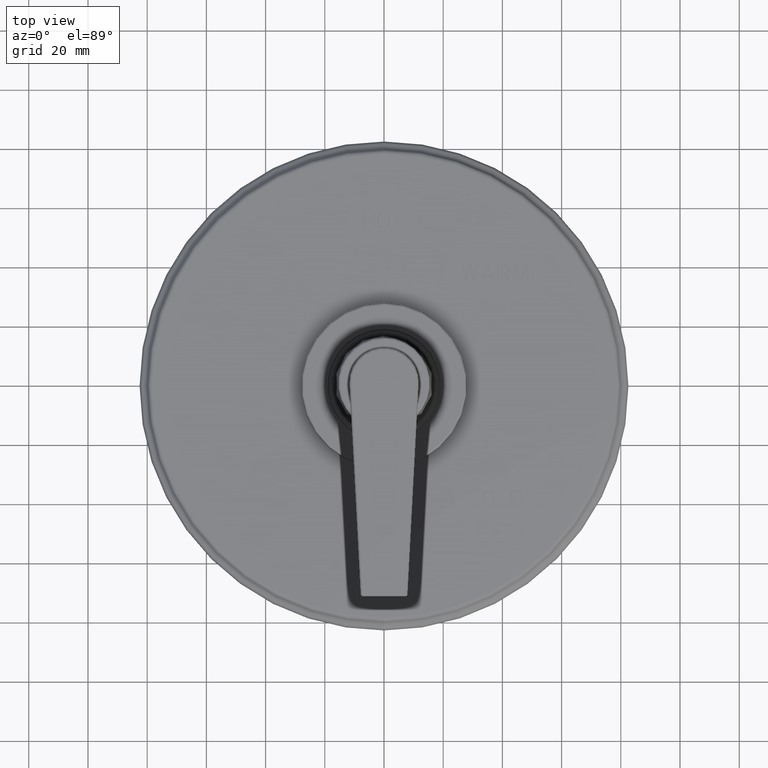
[diagram: clean part render]
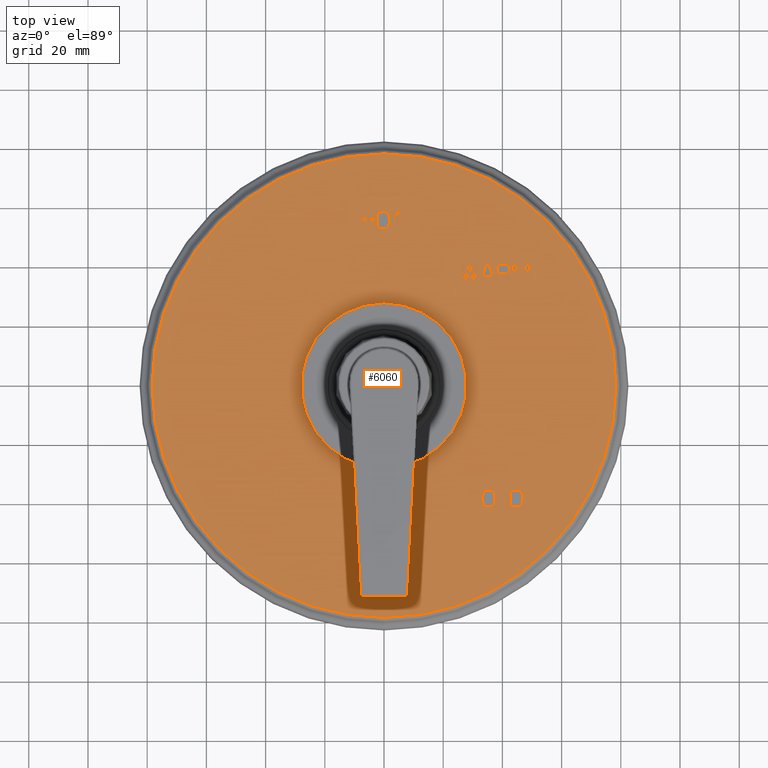
[diagram: same view with one face highlighted and labeled with its STEP entity id]
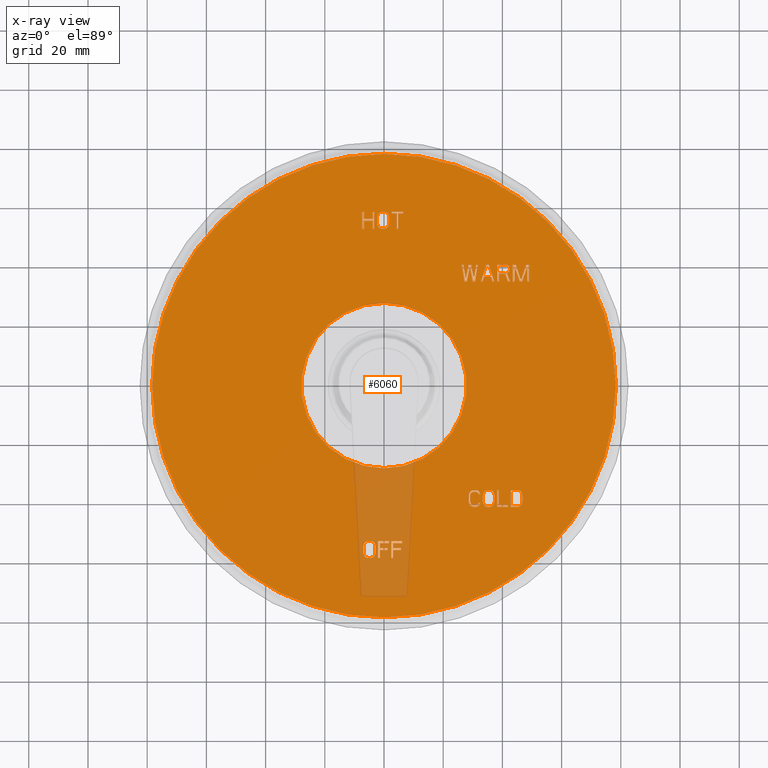
[diagram: x-ray of the same camera — body ghosted, the highlighted face saturated]
A machine part, top view. The second image highlights one B-rep face of the part: STEP entity #6060.
The next image is the same camera in x-ray: the body ghosted, the highlighted face saturated — about 5% of this face is hidden behind the body in this view.
In plain terms, the highlighted planar face has unit normal (0, 0, -1).
Its self-contained STEP definition (entity closure, byte-faithful):
#6=DIRECTION('',(-1.E0,0.E0,0.E0));
#7=VECTOR('',#6,2.409625668449E-2);
#8=CARTESIAN_POINT('',(1.281125668449E0,-1.555053191632E0,3.13E-1));
#9=LINE('',#8,#7);
#10=DIRECTION('',(-2.693042521225E-1,-9.630551488823E-1,0.E0));
#11=VECTOR('',#10,1.491264589809E-2);
#12=CARTESIAN_POINT('',(1.257029411765E0,-1.555053191632E0,3.13E-1));
#13=LINE('',#12,#11);
#14=DIRECTION('',(-7.828943761087E-1,-6.221546398263E-1,0.E0));
#15=VECTOR('',#14,1.538921304063E-2);
#16=CARTESIAN_POINT('',(1.253013372814E0,-1.569414892048E0,3.13E-1));
#17=LINE('',#16,#15);
#18=DIRECTION('',(-9.583504377895E-1,-2.855948850884E-1,0.E0));
#19=VECTOR('',#18,1.676232216270E-2);
#20=CARTESIAN_POINT('',(1.240965244472E0,-1.578989362344E0,3.13E-1));
#21=LINE('',#20,#19);
#22=DIRECTION('',(-1.E0,0.E0,0.E0));
#23=VECTOR('',#22,3.614437928174E-2);
#24=CARTESIAN_POINT('',(1.224901065689E0,-1.583776595816E0,3.13E-1));
#25=LINE('',#24,#23);
#26=DIRECTION('',(-9.583504098347E-1,2.855949788944E-1,0.E0));
#27=VECTOR('',#26,1.676231665698E-2);
#28=CARTESIAN_POINT('',(1.188756686407E0,-1.583776595816E0,3.13E-1));
#29=LINE('',#28,#27);
#30=DIRECTION('',(-7.828943761087E-1,6.221546398263E-1,0.E0));
#31=VECTOR('',#30,1.538921304063E-2);
#32=CARTESIAN_POINT('',(1.172692513369E0,-1.578989362344E0,3.13E-1));
#33=LINE('',#32,#31);
#34=DIRECTION('',(-4.881191178195E-1,8.727770201026E-1,0.E0));
#35=VECTOR('',#34,1.645517707825E-2);
#36=CARTESIAN_POINT('',(1.160644385027E0,-1.569414892048E0,3.13E-1));
#37=LINE('',#36,#35);
#38=DIRECTION('',(-2.052610006751E-1,9.787072706391E-1,0.E0));
#39=VECTOR('',#38,1.956553758406E-2);
#40=CARTESIAN_POINT('',(1.152612298508E0,-1.555053191632E0,3.13E-1));
#41=LINE('',#40,#39);
#42=DIRECTION('',(0.E0,1.E0,0.E0));
#43=VECTOR('',#42,7.180850878358E-2);
#44=CARTESIAN_POINT('',(1.148596256684E0,-1.535904257745E0,3.13E-1));
#45=LINE('',#44,#43);
#46=DIRECTION('',(2.052610006751E-1,9.787072706391E-1,0.E0));
#47=VECTOR('',#46,1.956553758406E-2);
#48=CARTESIAN_POINT('',(1.148596256684E0,-1.464095748961E0,3.13E-1));
#49=LINE('',#48,#47);
#50=DIRECTION('',(4.881187706121E-1,8.727772142856E-1,0.E0));
#51=VECTOR('',#50,1.645518878310E-2);
#52=CARTESIAN_POINT('',(1.152612298508E0,-1.444946815073E0,3.13E-1));
#53=LINE('',#52,#51);
#54=DIRECTION('',(7.828944822264E-1,6.221545062921E-1,0.E0));
#55=VECTOR('',#54,1.538921095469E-2);
#56=CARTESIAN_POINT('',(1.160644385027E0,-1.430585101247E0,3.13E-1));
#57=LINE('',#56,#55);
#58=DIRECTION('',(9.583504098347E-1,2.855949788944E-1,0.E0));
#59=VECTOR('',#58,1.676231665698E-2);
#60=CARTESIAN_POINT('',(1.172692513369E0,-1.421010634303E0,3.13E-1));
#61=LINE('',#60,#59);
#62=DIRECTION('',(1.E0,0.E0,0.E0));
#63=VECTOR('',#62,3.614437928174E-2);
#64=CARTESIAN_POINT('',(1.188756686407E0,-1.416223400831E0,3.13E-1));
#65=LINE('',#64,#63);
#66=DIRECTION('',(9.583504377895E-1,-2.855948850884E-1,0.E0));
#67=VECTOR('',#66,1.676232216270E-2);
#68=CARTESIAN_POINT('',(1.224901065689E0,-1.416223400831E0,3.13E-1));
#69=LINE('',#68,#67);
#70=DIRECTION('',(7.828944822264E-1,-6.221545062921E-1,0.E0));
#71=VECTOR('',#70,1.538921095469E-2);
#72=CARTESIAN_POINT('',(1.240965244472E0,-1.421010634303E0,3.13E-1));
#73=LINE('',#72,#71);
#74=DIRECTION('',(2.693040188831E-1,-9.630552141043E-1,0.E0));
#75=VECTOR('',#74,1.491265881366E-2);
#76=CARTESIAN_POINT('',(1.253013372814E0,-1.430585101247E0,3.13E-1));
#77=LINE('',#76,#75);
#78=DIRECTION('',(1.E0,0.E0,0.E0));
#79=VECTOR('',#78,2.409625668449E-2);
#80=CARTESIAN_POINT('',(1.257029411765E0,-1.444946815073E0,3.13E-1));
#81=LINE('',#80,#79);
#82=DIRECTION('',(-1.654682655409E-1,9.862151150225E-1,0.E0));
#83=VECTOR('',#82,2.427075027120E-2);
#84=CARTESIAN_POINT('',(1.281125668449E0,-1.444946815073E0,3.13E-1));
#85=LINE('',#84,#83);
#86=DIRECTION('',(-6.427010995602E-1,7.661170254107E-1,0.E0));
#87=VECTOR('',#86,2.499478963702E-2);
#88=CARTESIAN_POINT('',(1.277109629498E0,-1.421010634303E0,3.13E-1));
#89=LINE('',#88,#87);
#90=DIRECTION('',(-8.589998452769E-1,5.119758449520E-1,0.E0));
#91=VECTOR('',#90,1.870101302267E-2);
#92=CARTESIAN_POINT('',(1.261045450715E0,-1.401861700416E0,3.13E-1));
#93=LINE('',#92,#91);
#94=DIRECTION('',(-9.727381793858E-1,2.319060895389E-1,0.E0));
#95=VECTOR('',#94,2.064298303416E-2);
#96=CARTESIAN_POINT('',(1.244981283422E0,-1.392287233472E0,3.13E-1));
#97=LINE('',#96,#95);
#98=DIRECTION('',(-1.E0,0.E0,0.E0));
#99=VECTOR('',#98,3.614437928174E-2);
#100=CARTESIAN_POINT('',(1.224901065689E0,-1.3875E0,3.13E-1));
#101=LINE('',#100,#99);
#102=DIRECTION('',(-9.727381719022E-1,-2.319061209292E-1,0.E0));
#103=VECTOR('',#102,2.064298023997E-2);
#104=CARTESIAN_POINT('',(1.188756686407E0,-1.3875E0,3.13E-1));
#105=LINE('',#104,#103);
#106=DIRECTION('',(-8.589999258005E-1,-5.119757098483E-1,0.E0));
#107=VECTOR('',#106,1.870101795762E-2);
#108=CARTESIAN_POINT('',(1.168676471546E0,-1.392287233472E0,3.13E-1));
#109=LINE('',#108,#107);
#110=DIRECTION('',(-6.427008972015E-1,-7.661171951708E-1,0.E0));
#111=VECTOR('',#110,2.499478409855E-2);
#112=CARTESIAN_POINT('',(1.152612298508E0,-1.401861700416E0,3.13E-1));
#113=LINE('',#112,#111);
#114=DIRECTION('',(-3.868039718297E-1,-9.221619637443E-1,0.E0));
#115=VECTOR('',#114,2.076526102826E-2);
#116=CARTESIAN_POINT('',(1.136548128342E0,-1.421010634303E0,3.13E-1));
#117=LINE('',#116,#115);
#118=DIRECTION('',(-1.654684238196E-1,-9.862150884663E-1,0.E0));
#119=VECTOR('',#118,2.427075092475E-2);
#120=CARTESIAN_POINT('',(1.128516042900E0,-1.440159568191E0,3.13E-1));
#121=LINE('',#120,#119);
#122=DIRECTION('',(0.E0,-1.E0,0.E0));
#123=VECTOR('',#122,7.180850878358E-2);
#124=CARTESIAN_POINT('',(1.1245E0,-1.464095748961E0,3.13E-1));
#125=LINE('',#124,#123);
#126=DIRECTION('',(1.654685139905E-1,-9.862150733373E-1,0.E0));
#127=VECTOR('',#126,2.427073769858E-2);
#128=CARTESIAN_POINT('',(1.1245E0,-1.535904257745E0,3.13E-1));
#129=LINE('',#128,#127);
#130=DIRECTION('',(3.868039142375E-1,-9.221619879015E-1,0.E0));
#131=VECTOR('',#130,2.076526412005E-2);
#132=CARTESIAN_POINT('',(1.128516042900E0,-1.559840425104E0,3.13E-1));
#133=LINE('',#132,#131);
#134=DIRECTION('',(6.427008641777E-1,-7.661172228747E-1,0.E0));
#135=VECTOR('',#134,2.499478538285E-2);
#136=CARTESIAN_POINT('',(1.136548128342E0,-1.578989362344E0,3.13E-1));
#137=LINE('',#136,#135);
#138=DIRECTION('',(8.589998962333E-1,-5.119757594567E-1,0.E0));
#139=VECTOR('',#138,1.870101860132E-2);
#140=CARTESIAN_POINT('',(1.152612298508E0,-1.598138297908E0,3.13E-1));
#141=LINE('',#140,#139);
#142=DIRECTION('',(9.727381673223E-1,-2.319061401394E-1,0.E0));
#143=VECTOR('',#142,2.064298033716E-2);
#144=CARTESIAN_POINT('',(1.168676471546E0,-1.607712766109E0,3.13E-1));
#145=LINE('',#144,#143);
#146=DIRECTION('',(1.E0,0.E0,0.E0));
#147=VECTOR('',#146,3.614437928174E-2);
#148=CARTESIAN_POINT('',(1.188756686407E0,-1.6125E0,3.13E-1));
#149=LINE('',#148,#147);
#150=DIRECTION('',(9.727381748060E-1,2.319061087491E-1,0.E0));
#151=VECTOR('',#150,2.064298313135E-2);
#152=CARTESIAN_POINT('',(1.224901065689E0,-1.6125E0,3.13E-1));
#153=LINE('',#152,#151);
#154=DIRECTION('',(8.589998157096E-1,5.119758945603E-1,0.E0));
#155=VECTOR('',#154,1.870101366637E-2);
#156=CARTESIAN_POINT('',(1.244981283422E0,-1.607712766109E0,3.13E-1));
#157=LINE('',#156,#155);
#158=DIRECTION('',(6.427010665363E-1,7.661170531146E-1,0.E0));
#159=VECTOR('',#158,2.499479092133E-2);
#160=CARTESIAN_POINT('',(1.261045450715E0,-1.598138297908E0,3.13E-1));
#161=LINE('',#160,#159);
#162=DIRECTION('',(1.654683331690E-1,9.862151036758E-1,0.E0));
#163=VECTOR('',#162,2.427074035157E-2);
#164=CARTESIAN_POINT('',(1.277109629498E0,-1.578989362344E0,3.13E-1));
#165=LINE('',#164,#163);
#166=DIRECTION('',(-9.727381494513E-1,-2.319062151002E-1,0.E0));
#167=VECTOR('',#166,2.064297185741E-2);
#168=CARTESIAN_POINT('',(1.377510695187E0,-1.3875E0,3.13E-1));
#169=LINE('',#168,#167);
#170=DIRECTION('',(-8.590000063241E-1,-5.119755747448E-1,0.E0));
#171=VECTOR('',#170,1.870102289257E-2);
#172=CARTESIAN_POINT('',(1.357430488943E0,-1.392287233472E0,3.13E-1));
#173=LINE('',#172,#171);
#174=DIRECTION('',(-6.427010995601E-1,-7.661170254107E-1,0.E0));
#175=VECTOR('',#174,2.499478963702E-2);
#176=CARTESIAN_POINT('',(1.341366310160E0,-1.401861700416E0,3.13E-1));
#177=LINE('',#176,#175);
#178=DIRECTION('',(-3.868036630376E-1,-9.221620932681E-1,0.E0));
#179=VECTOR('',#178,2.076525811164E-2);
#180=CARTESIAN_POINT('',(1.325302131377E0,-1.421010634303E0,3.13E-1));
#181=LINE('',#180,#179);
#182=DIRECTION('',(-1.654682655409E-1,-9.862151150225E-1,0.E0));
#183=VECTOR('',#182,2.427075027120E-2);
#184=CARTESIAN_POINT('',(1.317270053476E0,-1.440159568191E0,3.13E-1));
#185=LINE('',#184,#183);
#186=DIRECTION('',(0.E0,-1.E0,0.E0));
#187=VECTOR('',#186,7.180850878358E-2);
#188=CARTESIAN_POINT('',(1.313254014525E0,-1.464095748961E0,3.13E-1));
#189=LINE('',#188,#187);
#190=DIRECTION('',(1.654683557117E-1,-9.862150998936E-1,0.E0));
#191=VECTOR('',#190,2.427073704503E-2);
#192=CARTESIAN_POINT('',(1.313254014525E0,-1.535904257745E0,3.13E-1));
#193=LINE('',#192,#191);
#194=DIRECTION('',(3.868036054455E-1,-9.221621174253E-1,0.E0));
#195=VECTOR('',#194,2.076526120343E-2);
#196=CARTESIAN_POINT('',(1.317270053476E0,-1.559840425104E0,3.13E-1));
#197=LINE('',#196,#195);
#198=DIRECTION('',(6.427010665363E-1,-7.661170531146E-1,0.E0));
#199=VECTOR('',#198,2.499479092133E-2);
#200=CARTESIAN_POINT('',(1.325302131377E0,-1.578989362344E0,3.13E-1));
#201=LINE('',#200,#199);
#202=DIRECTION('',(8.589999767568E-1,-5.119756243531E-1,0.E0));
#203=VECTOR('',#202,1.870102353627E-2);
#204=CARTESIAN_POINT('',(1.341366310160E0,-1.598138297908E0,3.13E-1));
#205=LINE('',#204,#203);
#206=DIRECTION('',(9.727381448715E-1,-2.319062343104E-1,0.E0));
#207=VECTOR('',#206,2.064297195460E-2);
#208=CARTESIAN_POINT('',(1.357430488943E0,-1.607712766109E0,3.13E-1));
#209=LINE('',#208,#207);
#210=DIRECTION('',(1.E0,0.E0,0.E0));
#211=VECTOR('',#210,3.212833458600E-2);
#212=CARTESIAN_POINT('',(1.377510695187E0,-1.6125E0,3.13E-1));
#213=LINE('',#212,#211);
#214=DIRECTION('',(9.727382047404E-1,2.319059831880E-1,0.E0));
#215=VECTOR('',#214,2.064299430810E-2);
#216=CARTESIAN_POINT('',(1.409639029773E0,-1.6125E0,3.13E-1));
#217=LINE('',#216,#215);
#218=DIRECTION('',(8.589996546621E-1,5.119761647678E-1,0.E0));
#219=VECTOR('',#218,1.870100379647E-2);
#220=CARTESIAN_POINT('',(1.429719258997E0,-1.607712766109E0,3.13E-1));
#221=LINE('',#220,#219);
#222=DIRECTION('',(6.427010665363E-1,7.661170531146E-1,0.E0));
#223=VECTOR('',#222,2.499479092133E-2);
#224=CARTESIAN_POINT('',(1.445783414800E0,-1.598138297908E0,3.13E-1));
#225=LINE('',#224,#223);
#226=DIRECTION('',(3.868036054455E-1,9.221621174253E-1,0.E0));
#227=VECTOR('',#226,2.076526120343E-2);
#228=CARTESIAN_POINT('',(1.461847593583E0,-1.578989362344E0,3.13E-1));
#229=LINE('',#228,#227);
#230=DIRECTION('',(1.654688161590E-1,9.862150226390E-1,0.E0));
#231=VECTOR('',#230,2.427073894626E-2);
#232=CARTESIAN_POINT('',(1.469879671484E0,-1.559840425104E0,3.13E-1));
#233=LINE('',#232,#231);
#234=DIRECTION('',(0.E0,1.E0,0.E0));
#235=VECTOR('',#234,7.180850878358E-2);
#236=CARTESIAN_POINT('',(1.473895721925E0,-1.535904257745E0,3.13E-1));
#237=LINE('',#236,#235);
#238=DIRECTION('',(-1.654687259880E-1,9.862150377681E-1,0.E0));
#239=VECTOR('',#238,2.427075217243E-2);
#240=CARTESIAN_POINT('',(1.473895721925E0,-1.464095748961E0,3.13E-1));
#241=LINE('',#240,#239);
#242=DIRECTION('',(-3.868036630376E-1,9.221620932681E-1,0.E0));
#243=VECTOR('',#242,2.076525811164E-2);
#244=CARTESIAN_POINT('',(1.469879671484E0,-1.440159568191E0,3.13E-1));
#245=LINE('',#244,#243);
#246=DIRECTION('',(-6.427010995602E-1,7.661170254107E-1,0.E0));
#247=VECTOR('',#246,2.499478963702E-2);
#248=CARTESIAN_POINT('',(1.461847593583E0,-1.421010634303E0,3.13E-1));
#249=LINE('',#248,#247);
#250=DIRECTION('',(-8.589996842294E-1,5.119761151594E-1,0.E0));
#251=VECTOR('',#250,1.870100315277E-2);
#252=CARTESIAN_POINT('',(1.445783414800E0,-1.401861700416E0,3.13E-1));
#253=LINE('',#252,#251);
#254=DIRECTION('',(-9.727382093202E-1,2.319059639778E-1,0.E0));
#255=VECTOR('',#254,2.064299421091E-2);
#256=CARTESIAN_POINT('',(1.429719258997E0,-1.392287233472E0,3.13E-1));
#257=LINE('',#256,#255);
#258=DIRECTION('',(-1.E0,0.E0,0.E0));
#259=VECTOR('',#258,3.212833458600E-2);
#260=CARTESIAN_POINT('',(1.409639029773E0,-1.3875E0,3.13E-1));
#261=LINE('',#260,#259);
#262=DIRECTION('',(0.E0,-1.E0,0.E0));
#263=VECTOR('',#262,2.25E-1);
#264=CARTESIAN_POINT('',(1.506024056511E0,-1.3875E0,3.13E-1));
#265=LINE('',#264,#263);
#266=DIRECTION('',(1.E0,0.E0,0.E0));
#267=VECTOR('',#266,1.445775630869E-1);
#268=CARTESIAN_POINT('',(1.506024056511E0,-1.6125E0,3.13E-1));
#269=LINE('',#268,#267);
#270=DIRECTION('',(0.E0,1.E0,0.E0));
#271=VECTOR('',#270,2.872340418398E-2);
#272=CARTESIAN_POINT('',(1.650601619598E0,-1.6125E0,3.13E-1));
#273=LINE('',#272,#271);
#274=DIRECTION('',(-1.E0,0.E0,0.E0));
#275=VECTOR('',#274,1.204812834225E-1);
#276=CARTESIAN_POINT('',(1.650601619598E0,-1.583776595816E0,3.13E-1));
#277=LINE('',#276,#275);
#278=DIRECTION('',(0.E0,1.E0,0.E0));
#279=VECTOR('',#278,1.962765958160E-1);
#280=CARTESIAN_POINT('',(1.530120336176E0,-1.583776595816E0,3.13E-1));
#281=LINE('',#280,#279);
#282=DIRECTION('',(-1.E0,0.E0,0.E0));
#283=VECTOR('',#282,2.409627966447E-2);
#284=CARTESIAN_POINT('',(1.530120336176E0,-1.3875E0,3.13E-1));
#285=LINE('',#284,#283);
#286=DIRECTION('',(-1.E0,0.E0,0.E0));
#287=VECTOR('',#286,9.638502673797E-2);
#288=CARTESIAN_POINT('',(1.779114957942E0,-1.3875E0,3.13E-1));
#289=LINE('',#288,#287);
#290=DIRECTION('',(0.E0,-1.E0,0.E0));
#291=VECTOR('',#290,2.25E-1);
#292=CARTESIAN_POINT('',(1.682729931204E0,-1.3875E0,3.13E-1));
#293=LINE('',#292,#291);
#294=DIRECTION('',(1.E0,0.E0,0.E0));
#295=VECTOR('',#294,9.638502673797E-2);
#296=CARTESIAN_POINT('',(1.682729931204E0,-1.6125E0,3.13E-1));
#297=LINE('',#296,#295);
#298=DIRECTION('',(9.727382047404E-1,2.319059831880E-1,0.E0));
#299=VECTOR('',#298,2.064299430810E-2);
#300=CARTESIAN_POINT('',(1.779114957942E0,-1.6125E0,3.13E-1));
#301=LINE('',#300,#299);
#302=DIRECTION('',(8.589996546621E-1,5.119761647678E-1,0.E0));
#303=VECTOR('',#302,1.870100379647E-2);
#304=CARTESIAN_POINT('',(1.799195187166E0,-1.607712766109E0,3.13E-1));
#305=LINE('',#304,#303);
#306=DIRECTION('',(6.427016061588E-1,7.661166004212E-1,0.E0));
#307=VECTOR('',#306,2.499480569059E-2);
#308=CARTESIAN_POINT('',(1.815259342969E0,-1.598138297908E0,3.13E-1));
#309=LINE('',#308,#307);
#310=DIRECTION('',(3.868026643643E-1,9.221625121640E-1,0.E0));
#311=VECTOR('',#310,2.076525231470E-2);
#312=CARTESIAN_POINT('',(1.831323544732E0,-1.578989362344E0,3.13E-1));
#313=LINE('',#312,#311);
#314=DIRECTION('',(1.654697370534E-1,9.862148681294E-1,0.E0));
#315=VECTOR('',#314,2.427074274874E-2);
#316=CARTESIAN_POINT('',(1.839355599653E0,-1.559840425104E0,3.13E-1));
#317=LINE('',#316,#315);
#318=DIRECTION('',(0.E0,1.E0,0.E0));
#319=VECTOR('',#318,7.180850878358E-2);
#320=CARTESIAN_POINT('',(1.843371673074E0,-1.535904257745E0,3.13E-1));
#321=LINE('',#320,#319);
#322=DIRECTION('',(-1.654696468818E-1,9.862148832586E-1,0.E0));
#323=VECTOR('',#322,2.427075597491E-2);
#324=CARTESIAN_POINT('',(1.843371673074E0,-1.464095748961E0,3.13E-1));
#325=LINE('',#324,#323);
#326=DIRECTION('',(-3.868027219563E-1,9.221624880070E-1,0.E0));
#327=VECTOR('',#326,2.076524922291E-2);
#328=CARTESIAN_POINT('',(1.839355599653E0,-1.440159568191E0,3.13E-1));
#329=LINE('',#328,#327);
#330=DIRECTION('',(-6.427016391826E-1,7.661165727172E-1,0.E0));
#331=VECTOR('',#330,2.499480440629E-2);
#332=CARTESIAN_POINT('',(1.831323544732E0,-1.421010634303E0,3.13E-1));
#333=LINE('',#332,#331);
#334=DIRECTION('',(-8.589996842294E-1,5.119761151594E-1,0.E0));
#335=VECTOR('',#334,1.870100315277E-2);
#336=CARTESIAN_POINT('',(1.815259342969E0,-1.401861700416E0,3.13E-1));
#337=LINE('',#336,#335);
#338=DIRECTION('',(-9.727382093202E-1,2.319059639778E-1,0.E0));
#339=VECTOR('',#338,2.064299421091E-2);
#340=CARTESIAN_POINT('',(1.799195187166E0,-1.392287233472E0,3.13E-1));
#341=LINE('',#340,#339);
#342=DIRECTION('',(1.955400086491E-1,9.806957249920E-1,0.E0));
#343=VECTOR('',#342,1.854957599154E-1);
#344=CARTESIAN_POINT('',(1.105543691482E0,1.3875E0,3.13E-1));
#345=LINE('',#344,#343);
#346=DIRECTION('',(1.955400422774E-1,-9.806957182868E-1,0.E0));
#347=VECTOR('',#346,1.854957611837E-1);
#348=CARTESIAN_POINT('',(1.141815533981E0,1.569414898753E0,3.13E-1));
#349=LINE('',#348,#347);
#350=DIRECTION('',(1.E0,0.E0,0.E0));
#351=VECTOR('',#350,3.627183601231E-2);
#352=CARTESIAN_POINT('',(1.178087382965E0,1.3875E0,3.13E-1));
#353=LINE('',#352,#351);
#354=DIRECTION('',(1.591534351937E-1,9.872538599905E-1,0.E0));
#355=VECTOR('',#354,2.279049078645E-1);
#356=CARTESIAN_POINT('',(1.214359218977E0,1.3875E0,3.13E-1));
#357=LINE('',#356,#355);
#358=DIRECTION('',(-1.E0,0.E0,0.E0));
#359=VECTOR('',#358,2.720388349515E-2);
#360=CARTESIAN_POINT('',(1.250631067961E0,1.6125E0,3.13E-1));
#361=LINE('',#360,#359);
#362=DIRECTION('',(-1.559191643188E-1,-9.877698184284E-1,0.E0));
#363=VECTOR('',#362,1.744742771935E-1);
#364=CARTESIAN_POINT('',(1.223427184466E0,1.6125E0,3.13E-1));
#365=LINE('',#364,#363);
#366=DIRECTION('',(-2.059542297565E-1,9.785616256759E-1,0.E0));
#367=VECTOR('',#366,1.761160672787E-1);
#368=CARTESIAN_POINT('',(1.196223300971E0,1.440159574896E0,3.13E-1));
#369=LINE('',#368,#367);
#370=DIRECTION('',(-1.E0,0.E0,0.E0));
#371=VECTOR('',#370,3.627184249822E-2);
#372=CARTESIAN_POINT('',(1.159951451987E0,1.6125E0,3.13E-1));
#373=LINE('',#372,#371);
#374=DIRECTION('',(-2.059541944911E-1,-9.785616330980E-1,0.E0));
#375=VECTOR('',#374,1.761160659429E-1);
#376=CARTESIAN_POINT('',(1.123679609489E0,1.6125E0,3.13E-1));
#377=LINE('',#376,#375);
#378=DIRECTION('',(-1.559191643188E-1,9.877698184284E-1,0.E0));
#379=VECTOR('',#378,1.744742771935E-1);
#380=CARTESIAN_POINT('',(1.087407766990E0,1.440159574896E0,3.13E-1));
#381=LINE('',#380,#379);
#382=DIRECTION('',(-1.E0,0.E0,0.E0));
#383=VECTOR('',#382,2.720388349515E-2);
#384=CARTESIAN_POINT('',(1.060203883495E0,1.6125E0,3.13E-1));
#385=LINE('',#384,#383);
#386=DIRECTION('',(1.591534213247E-1,-9.872538622263E-1,0.E0));
#387=VECTOR('',#386,2.279049073484E-1);
#388=CARTESIAN_POINT('',(1.033E0,1.6125E0,3.13E-1));
#389=LINE('',#388,#387);
#390=DIRECTION('',(1.E0,0.E0,0.E0));
#391=VECTOR('',#390,3.627184574118E-2);
#392=CARTESIAN_POINT('',(1.069271845741E0,1.3875E0,3.13E-1));
#393=LINE('',#392,#391);
#394=DIRECTION('',(-1.E0,0.E0,0.E0));
#395=VECTOR('',#394,3.627183601231E-2);
#396=CARTESIAN_POINT('',(1.395718437954E0,1.6125E0,3.13E-1));
#397=LINE('',#396,#395);
#398=DIRECTION('',(-3.068612193901E-1,-9.517542708254E-1,0.E0));
#399=VECTOR('',#398,2.364055585533E-1);
#400=CARTESIAN_POINT('',(1.359446601942E0,1.6125E0,3.13E-1));
#401=LINE('',#400,#399);
#402=DIRECTION('',(1.E0,0.E0,0.E0));
#403=VECTOR('',#402,2.720388349515E-2);
#404=CARTESIAN_POINT('',(1.286902903973E0,1.3875E0,3.13E-1));
#405=LINE('',#404,#403);
#406=DIRECTION('',(3.010533823936E-1,9.536072886411E-1,0.E0));
#407=VECTOR('',#406,6.024157853264E-2);
#408=CARTESIAN_POINT('',(1.314106787469E0,1.3875E0,3.13E-1));
#409=LINE('',#408,#407);
#410=DIRECTION('',(1.E0,0.E0,0.E0));
#411=VECTOR('',#410,9.067960300260E-2);
#412=CARTESIAN_POINT('',(1.332242718447E0,1.444946808368E0,3.13E-1));
#413=LINE('',#412,#411);
#414=DIRECTION('',(3.010533823936E-1,-9.536072886411E-1,0.E0));
#415=VECTOR('',#414,6.024157853264E-2);
#416=CARTESIAN_POINT('',(1.422922321449E0,1.444946808368E0,3.13E-1));
#417=LINE('',#416,#415);
#418=DIRECTION('',(1.E0,0.E0,0.E0));
#419=VECTOR('',#418,2.720388349515E-2);
#420=CARTESIAN_POINT('',(1.441058252427E0,1.3875E0,3.13E-1));
#421=LINE('',#420,#419);
#422=DIRECTION('',(-3.068612193901E-1,9.517542708254E-1,0.E0));
#423=VECTOR('',#422,2.364055585533E-1);
#424=CARTESIAN_POINT('',(1.468262135922E0,1.3875E0,3.13E-1));
#425=LINE('',#424,#423);
#426=DIRECTION('',(1.E0,0.E0,0.E0));
#427=VECTOR('',#426,7.707763531139E-2);
#428=CARTESIAN_POINT('',(1.531737881373E0,1.488031916320E0,3.13E-1));
#429=LINE('',#428,#427);
#430=DIRECTION('',(3.393851216826E-1,-9.406475105907E-1,0.E0));
#431=VECTOR('',#430,1.068752271052E-1);
#432=CARTESIAN_POINT('',(1.608815516685E0,1.488031916320E0,3.13E-1));
#433=LINE('',#432,#431);
#434=DIRECTION('',(1.E0,0.E0,0.E0));
#435=VECTOR('',#434,3.173784678191E-2);
#436=CARTESIAN_POINT('',(1.645087378641E0,1.3875E0,3.13E-1));
#437=LINE('',#436,#435);
#438=DIRECTION('',(-3.475066863451E-1,9.376775047667E-1,0.E0));
#439=VECTOR('',#438,1.174245758316E-1);
#440=CARTESIAN_POINT('',(1.676825225423E0,1.3875E0,3.13E-1));
#441=LINE('',#440,#439);
#442=DIRECTION('',(8.843301607692E-1,4.668620425285E-1,0.E0));
#443=VECTOR('',#442,2.050812889368E-2);
#444=CARTESIAN_POINT('',(1.636019400180E0,1.497606383264E0,3.13E-1));
#445=LINE('',#444,#443);
#446=DIRECTION('',(5.790973638916E-1,8.152583904099E-1,0.E0));
#447=VECTOR('',#446,2.348817762900E-2);
#448=CARTESIAN_POINT('',(1.654155357102E0,1.507180850208E0,3.13E-1));
#449=LINE('',#448,#447);
#450=DIRECTION('',(3.010522394645E-1,9.536076494625E-1,0.E0));
#451=VECTOR('',#450,1.506038717675E-2);
#452=CARTESIAN_POINT('',(1.667757298849E0,1.526329784095E0,3.13E-1));
#453=LINE('',#452,#451);
#454=DIRECTION('',(0.E0,1.E0,0.E0));
#455=VECTOR('',#454,1.914894729853E-2);
#456=CARTESIAN_POINT('',(1.672291262136E0,1.540691484511E0,3.13E-1));
#457=LINE('',#456,#455);
#458=DIRECTION('',(-3.010522394645E-1,9.536076494625E-1,0.E0));
#459=VECTOR('',#458,1.506038717675E-2);
#460=CARTESIAN_POINT('',(1.672291262136E0,1.559840431809E0,3.13E-1));
#461=LINE('',#460,#459);
#462=DIRECTION('',(-5.790973638916E-1,8.152583904099E-1,0.E0));
#463=VECTOR('',#462,2.348817762900E-2);
#464=CARTESIAN_POINT('',(1.667757298849E0,1.574202132225E0,3.13E-1));
#465=LINE('',#464,#463);
#466=DIRECTION('',(-7.839602425777E-1,6.208110324869E-1,0.E0));
#467=VECTOR('',#466,2.313377125094E-2);
#468=CARTESIAN_POINT('',(1.654155357102E0,1.593351066113E0,3.13E-1));
#469=LINE('',#468,#467);
#470=DIRECTION('',(-9.784223116623E-1,2.066150527948E-1,0.E0));
#471=VECTOR('',#470,2.316981946434E-2);
#472=CARTESIAN_POINT('',(1.636019400180E0,1.607712766528E0,3.13E-1));
#473=LINE('',#472,#471);
#474=DIRECTION('',(-1.E0,0.E0,0.E0));
#475=VECTOR('',#474,1.088155339806E-1);
#476=CARTESIAN_POINT('',(1.613349531859E0,1.6125E0,3.13E-1));
#477=LINE('',#476,#475);
#478=DIRECTION('',(0.E0,-1.E0,0.E0));
#479=VECTOR('',#478,2.25E-1);
#480=CARTESIAN_POINT('',(1.504533997878E0,1.6125E0,3.13E-1));
#481=LINE('',#480,#479);
#482=DIRECTION('',(1.E0,0.E0,0.E0));
#483=VECTOR('',#482,2.720388349515E-2);
#484=CARTESIAN_POINT('',(1.504533997878E0,1.3875E0,3.13E-1));
#485=LINE('',#484,#483);
#486=DIRECTION('',(0.E0,1.E0,0.E0));
#487=VECTOR('',#486,1.005319163203E-1);
#488=CARTESIAN_POINT('',(1.531737881373E0,1.3875E0,3.13E-1));
#489=LINE('',#488,#487);
#490=DIRECTION('',(0.E0,-1.E0,0.E0));
#491=VECTOR('',#490,1.771276652813E-1);
#492=CARTESIAN_POINT('',(1.903524271845E0,1.564627665281E0,3.13E-1));
#493=LINE('',#492,#491);
#494=DIRECTION('',(1.E0,0.E0,0.E0));
#495=VECTOR('',#494,2.720388349515E-2);
#496=CARTESIAN_POINT('',(1.903524271845E0,1.3875E0,3.13E-1));
#497=LINE('',#496,#495);
#498=DIRECTION('',(0.E0,1.E0,0.E0));
#499=VECTOR('',#498,2.25E-1);
#500=CARTESIAN_POINT('',(1.930728155340E0,1.3875E0,3.13E-1));
#501=LINE('',#500,#499);
#502=DIRECTION('',(-1.E0,0.E0,0.E0));
#503=VECTOR('',#502,4.080582524272E-2);
#504=CARTESIAN_POINT('',(1.930728155340E0,1.6125E0,3.13E-1));
#505=LINE('',#504,#503);
#506=DIRECTION('',(-3.204158230529E-1,-9.472769924037E-1,0.E0));
#507=VECTOR('',#506,2.122545262898E-1);
#508=CARTESIAN_POINT('',(1.889922330097E0,1.6125E0,3.13E-1));
#509=LINE('',#508,#507);
#510=DIRECTION('',(-3.204158230529E-1,9.472769924037E-1,0.E0));
#511=VECTOR('',#510,2.122545262898E-1);
#512=CARTESIAN_POINT('',(1.821912621359E0,1.411436170712E0,3.13E-1));
#513=LINE('',#512,#511);
#514=DIRECTION('',(-1.E0,0.E0,0.E0));
#515=VECTOR('',#514,4.080582524272E-2);
#516=CARTESIAN_POINT('',(1.753902912621E0,1.6125E0,3.13E-1));
#517=LINE('',#516,#515);
#518=DIRECTION('',(0.E0,-1.E0,0.E0));
#519=VECTOR('',#518,2.25E-1);
#520=CARTESIAN_POINT('',(1.713097087379E0,1.6125E0,3.13E-1));
#521=LINE('',#520,#519);
#522=DIRECTION('',(1.E0,0.E0,0.E0));
#523=VECTOR('',#522,2.720388349515E-2);
#524=CARTESIAN_POINT('',(1.713097087379E0,1.3875E0,3.13E-1));
#525=LINE('',#524,#523);
#526=DIRECTION('',(0.E0,1.E0,0.E0));
#527=VECTOR('',#526,1.771276652813E-1);
#528=CARTESIAN_POINT('',(1.740300970874E0,1.3875E0,3.13E-1));
#529=LINE('',#528,#527);
#530=DIRECTION('',(3.373536754746E-1,-9.413779780958E-1,0.E0));
#531=VECTOR('',#530,1.881578594388E-1);
#532=CARTESIAN_POINT('',(1.740300970874E0,1.564627665281E0,3.13E-1));
#533=LINE('',#532,#531);
#534=DIRECTION('',(1.E0,0.E0,0.E0));
#535=VECTOR('',#534,3.627181006867E-2);
#536=CARTESIAN_POINT('',(1.803776716325E0,1.3875E0,3.13E-1));
#537=LINE('',#536,#535);
#538=DIRECTION('',(3.373536754746E-1,9.413779780958E-1,0.E0));
#539=VECTOR('',#538,1.881578594388E-1);
#540=CARTESIAN_POINT('',(1.840048526394E0,1.3875E0,3.13E-1));
#541=LINE('',#540,#539);
#542=DIRECTION('',(0.E0,1.E0,0.E0));
#543=VECTOR('',#542,1.053191497922E-1);
#544=CARTESIAN_POINT('',(-2.641197183099E-1,2.0875E0,3.13E-1));
#545=LINE('',#544,#543);
#546=DIRECTION('',(1.E0,0.E0,0.E0));
#547=VECTOR('',#546,1.137746440122E-1);
#548=CARTESIAN_POINT('',(-2.641197183099E-1,2.192819149792E0,3.13E-1));
#549=LINE('',#548,#547);
#550=DIRECTION('',(0.E0,-1.E0,0.E0));
#551=VECTOR('',#550,1.053191497922E-1);
#552=CARTESIAN_POINT('',(-1.503450742977E-1,2.192819149792E0,3.13E-1));
#553=LINE('',#552,#551);
#554=DIRECTION('',(1.E0,0.E0,0.E0));
#555=VECTOR('',#554,2.438028169014E-2);
#556=CARTESIAN_POINT('',(-1.503450742977E-1,2.0875E0,3.13E-1));
#557=LINE('',#556,#555);
#558=DIRECTION('',(0.E0,1.E0,0.E0));
#559=VECTOR('',#558,2.25E-1);
#560=CARTESIAN_POINT('',(-1.259647926075E-1,2.0875E0,3.13E-1));
#561=LINE('',#560,#559);
#562=DIRECTION('',(-1.E0,0.E0,0.E0));
#563=VECTOR('',#562,2.438028169014E-2);
#564=CARTESIAN_POINT('',(-1.259647926075E-1,2.3125E0,3.13E-1));
#565=LINE('',#564,#563);
#566=DIRECTION('',(0.E0,-1.E0,0.E0));
#567=VECTOR('',#566,9.095744937658E-2);
#568=CARTESIAN_POINT('',(-1.503450742977E-1,2.3125E0,3.13E-1));
#569=LINE('',#568,#567);
#570=DIRECTION('',(-1.E0,0.E0,0.E0));
#571=VECTOR('',#570,1.137746440122E-1);
#572=CARTESIAN_POINT('',(-1.503450742977E-1,2.221542550623E0,3.13E-1));
#573=LINE('',#572,#571);
#574=DIRECTION('',(0.E0,1.E0,0.E0));
#575=VECTOR('',#574,9.095744937658E-2);
#576=CARTESIAN_POINT('',(-2.641197183099E-1,2.221542550623E0,3.13E-1));
#577=LINE('',#576,#575);
#578=DIRECTION('',(-1.E0,0.E0,0.E0));
#579=VECTOR('',#578,2.438028169014E-2);
#580=CARTESIAN_POINT('',(-2.641197183099E-1,2.3125E0,3.13E-1));
#581=LINE('',#580,#579);
#582=DIRECTION('',(0.E0,-1.E0,0.E0));
#583=VECTOR('',#582,2.25E-1);
#584=CARTESIAN_POINT('',(-2.885E-1,2.3125E0,3.13E-1));
#585=LINE('',#584,#583);
#586=DIRECTION('',(1.E0,0.E0,0.E0));
#587=VECTOR('',#586,2.438028169014E-2);
#588=CARTESIAN_POINT('',(-2.885E-1,2.0875E0,3.13E-1));
#589=LINE('',#588,#587);
#590=DIRECTION('',(-9.733446754566E-1,-2.293472100555E-1,0.E0));
#591=VECTOR('',#590,2.087330153574E-2);
#592=CARTESIAN_POINT('',(-2.844365422155E-2,2.3125E0,3.13E-1));
#593=LINE('',#592,#591);
#594=DIRECTION('',(-8.616194131362E-1,-5.075549102381E-1,0.E0));
#595=VECTOR('',#594,1.886390368926E-2);
#596=CARTESIAN_POINT('',(-4.876057113056E-2,2.307712766528E0,3.13E-1));
#597=LINE('',#596,#595);
#598=DIRECTION('',(-6.471151393796E-1,-7.623922851037E-1,0.E0));
#599=VECTOR('',#598,2.511690406846E-2);
#600=CARTESIAN_POINT('',(-6.501407675676E-2,2.298138299584E0,3.13E-1));
#601=LINE('',#600,#599);
#602=DIRECTION('',(-3.906705423038E-1,-9.205305684093E-1,0.E0));
#603=VECTOR('',#602,2.080206192454E-2);
#604=CARTESIAN_POINT('',(-8.126760563380E-2,2.278989365697E0,3.13E-1));
#605=LINE('',#604,#603);
#606=DIRECTION('',(-1.673647994392E-1,-9.858950369632E-1,0.E0));
#607=VECTOR('',#606,2.427862994840E-2);
#608=CARTESIAN_POINT('',(-8.939435844690E-2,2.259840431809E0,3.13E-1));
#609=LINE('',#608,#607);
#610=DIRECTION('',(0.E0,-1.E0,0.E0));
#611=VECTOR('',#610,7.180850878358E-2);
#612=CARTESIAN_POINT('',(-9.345774647887E-2,2.235904251039E0,3.13E-1));
#613=LINE('',#612,#611);
#614=DIRECTION('',(1.673648905843E-1,-9.858950214905E-1,0.E0));
#615=VECTOR('',#614,2.427861672652E-2);
#616=CARTESIAN_POINT('',(-9.345774647887E-2,2.164095742255E0,3.13E-1));
#617=LINE('',#616,#615);
#618=DIRECTION('',(3.906704843416E-1,-9.205305930083E-1,0.E0));
#619=VECTOR('',#618,2.080206501086E-2);
#620=CARTESIAN_POINT('',(-8.939435844690E-2,2.140159574896E0,3.13E-1));
#621=LINE('',#620,#619);
#622=DIRECTION('',(6.471151064515E-1,-7.623923130530E-1,0.E0));
#623=VECTOR('',#622,2.511690534652E-2);
#624=CARTESIAN_POINT('',(-8.126760563380E-2,2.121010637656E0,3.13E-1));
#625=LINE('',#624,#623);
#626=DIRECTION('',(8.616193839888E-1,-5.075549597185E-1,0.E0));
#627=VECTOR('',#626,1.886390432740E-2);
#628=CARTESIAN_POINT('',(-6.501407675676E-2,2.101861702092E0,3.13E-1));
#629=LINE('',#628,#627);
#630=DIRECTION('',(9.733446709745E-1,-2.293472290775E-1,0.E0));
#631=VECTOR('',#630,2.087330163186E-2);
#632=CARTESIAN_POINT('',(-4.876057113056E-2,2.092287233891E0,3.13E-1));
#633=LINE('',#632,#631);
#634=DIRECTION('',(1.E0,0.E0,0.E0));
#635=VECTOR('',#634,3.250703450324E-2);
#636=CARTESIAN_POINT('',(-2.844365422155E-2,2.0875E0,3.13E-1));
#637=LINE('',#636,#635);
#638=DIRECTION('',(9.733446123829E-1,2.293474777388E-1,0.E0));
#639=VECTOR('',#638,2.087327900077E-2);
#640=CARTESIAN_POINT('',(4.063380281690E-3,2.0875E0,3.13E-1));
#641=LINE('',#640,#639);
#642=DIRECTION('',(8.616197015099E-1,5.075544206979E-1,0.E0));
#643=VECTOR('',#642,1.886392436078E-2);
#644=CARTESIAN_POINT('',(2.438027393986E-2,2.092287233891E0,3.13E-1));
#645=LINE('',#644,#643);
#646=DIRECTION('',(6.471151064515E-1,7.623923130530E-1,0.E0));
#647=VECTOR('',#646,2.511690534652E-2);
#648=CARTESIAN_POINT('',(4.063380281690E-2,2.101861702092E0,3.13E-1));
#649=LINE('',#648,#647);
#650=DIRECTION('',(3.906704843416E-1,9.205305930083E-1,0.E0));
#651=VECTOR('',#650,2.080206501086E-2);
#652=CARTESIAN_POINT('',(5.688733169394E-2,2.121010637656E0,3.13E-1));
#653=LINE('',#652,#651);
#654=DIRECTION('',(1.673648905843E-1,9.858950214905E-1,0.E0));
#655=VECTOR('',#654,2.427861672652E-2);
#656=CARTESIAN_POINT('',(6.501408450704E-2,2.140159574896E0,3.13E-1));
#657=LINE('',#656,#655);
#658=DIRECTION('',(0.E0,1.E0,0.E0));
#659=VECTOR('',#658,7.180850878358E-2);
#660=CARTESIAN_POINT('',(6.907747253902E-2,2.164095742255E0,3.13E-1));
#661=LINE('',#660,#659);
#662=DIRECTION('',(-1.673647994392E-1,9.858950369632E-1,0.E0));
#663=VECTOR('',#662,2.427862994840E-2);
#664=CARTESIAN_POINT('',(6.907747253902E-2,2.235904251039E0,3.13E-1));
#665=LINE('',#664,#663);
#666=DIRECTION('',(-3.906705423038E-1,9.205305684093E-1,0.E0));
#667=VECTOR('',#666,2.080206192454E-2);
#668=CARTESIAN_POINT('',(6.501408450704E-2,2.259840431809E0,3.13E-1));
#669=LINE('',#668,#667);
#670=DIRECTION('',(-6.471151393796E-1,7.623922851037E-1,0.E0));
#671=VECTOR('',#670,2.511690406846E-2);
#672=CARTESIAN_POINT('',(5.688733169394E-2,2.278989365697E0,3.13E-1));
#673=LINE('',#672,#671);
#674=DIRECTION('',(-8.616197306573E-1,5.075543712175E-1,0.E0));
#675=VECTOR('',#674,1.886392372264E-2);
#676=CARTESIAN_POINT('',(4.063380281690E-2,2.298138299584E0,3.13E-1));
#677=LINE('',#676,#675);
#678=DIRECTION('',(-9.733446168650E-1,2.293474587169E-1,0.E0));
#679=VECTOR('',#678,2.087327890465E-2);
#680=CARTESIAN_POINT('',(2.438027393986E-2,2.307712766528E0,3.13E-1));
#681=LINE('',#680,#679);
#682=DIRECTION('',(-1.E0,0.E0,0.E0));
#683=VECTOR('',#682,3.250703450324E-2);
#684=CARTESIAN_POINT('',(4.063380281690E-3,2.3125E0,3.13E-1));
#685=LINE('',#684,#683);
#686=DIRECTION('',(-1.E0,0.E0,0.E0));
#687=VECTOR('',#686,1.544084662048E-1);
#688=CARTESIAN_POINT('',(2.559929732470E-1,2.3125E0,3.13E-1));
#689=LINE('',#688,#687);
#690=DIRECTION('',(0.E0,-1.E0,0.E0));
#691=VECTOR('',#690,2.393616735935E-2);
#692=CARTESIAN_POINT('',(1.015845070423E-1,2.3125E0,3.13E-1));
#693=LINE('',#692,#691);
#694=DIRECTION('',(1.E0,0.E0,0.E0));
#695=VECTOR('',#694,6.501406900648E-2);
#696=CARTESIAN_POINT('',(1.015845070423E-1,2.288563832641E0,3.13E-1));
#697=LINE('',#696,#695);
#698=DIRECTION('',(0.E0,-1.E0,0.E0));
#699=VECTOR('',#698,2.010638326406E-1);
#700=CARTESIAN_POINT('',(1.665985760487E-1,2.288563832641E0,3.13E-1));
#701=LINE('',#700,#699);
#702=DIRECTION('',(1.E0,0.E0,0.E0));
#703=VECTOR('',#702,2.438028169014E-2);
#704=CARTESIAN_POINT('',(1.665985760487E-1,2.0875E0,3.13E-1));
#705=LINE('',#704,#703);
#706=DIRECTION('',(0.E0,1.E0,0.E0));
#707=VECTOR('',#706,2.010638326406E-1);
#708=CARTESIAN_POINT('',(1.909788577389E-1,2.0875E0,3.13E-1));
#709=LINE('',#708,#707);
#710=DIRECTION('',(1.E0,0.E0,0.E0));
#711=VECTOR('',#710,6.501411550817E-2);
#712=CARTESIAN_POINT('',(1.909788577389E-1,2.288563832641E0,3.13E-1));
#713=LINE('',#712,#711);
#714=DIRECTION('',(0.E0,1.E0,0.E0));
#715=VECTOR('',#714,2.393616735935E-2);
#716=CARTESIAN_POINT('',(2.559929732470E-1,2.288563832641E0,3.13E-1));
#717=LINE('',#716,#715);
#718=DIRECTION('',(-9.729115012648E-1,-2.311778767675E-1,0.E0));
#719=VECTOR('',#718,2.070800865035E-2);
#720=CARTESIAN_POINT('',(-2.095294098433E-1,-2.0675E0,3.13E-1));
#721=LINE('',#720,#719);
#722=DIRECTION('',(-8.597467073564E-1,-5.107206664997E-1,0.E0));
#723=VECTOR('',#722,1.874697377994E-2);
#724=CARTESIAN_POINT('',(-2.296764696275E-1,-2.072287233472E0,3.13E-1));
#725=LINE('',#724,#723);
#726=DIRECTION('',(-6.439540492557E-1,-7.650641688428E-1,0.E0));
#727=VECTOR('',#726,2.502918665822E-2);
#728=CARTESIAN_POINT('',(-2.457941186077E-1,-2.081861700416E0,3.13E-1));
#729=LINE('',#728,#727);
#730=DIRECTION('',(-3.878981315873E-1,-9.217022510069E-1,0.E0));
#731=VECTOR('',#730,2.077561801174E-2);
#732=CARTESIAN_POINT('',(-2.619117647059E-1,-2.101010634303E0,3.13E-1));
#733=LINE('',#732,#731);
#734=DIRECTION('',(-1.660040959488E-1,-9.861250631275E-1,0.E0));
#735=VECTOR('',#734,2.427296665038E-2);
#736=CARTESIAN_POINT('',(-2.699705881152E-1,-2.120159568191E0,3.13E-1));
#737=LINE('',#736,#735);
#738=DIRECTION('',(0.E0,-1.E0,0.E0));
#739=VECTOR('',#738,7.180850878358E-2);
#740=CARTESIAN_POINT('',(-2.74E-1,-2.144095748961E0,3.13E-1));
#741=LINE('',#740,#739);
#742=DIRECTION('',(1.660041863951E-1,-9.861250479018E-1,0.E0));
#743=VECTOR('',#742,2.427295342541E-2);
#744=CARTESIAN_POINT('',(-2.74E-1,-2.215904257745E0,3.13E-1));
#745=LINE('',#744,#743);
#746=DIRECTION('',(3.878980738898E-1,-9.217022752888E-1,0.E0));
#747=VECTOR('',#746,2.077562110199E-2);
#748=CARTESIAN_POINT('',(-2.699705881152E-1,-2.239840425104E0,3.13E-1));
#749=LINE('',#748,#747);
#750=DIRECTION('',(6.439540162584E-1,-7.650641966166E-1,0.E0));
#751=VECTOR('',#750,2.502918794076E-2);
#752=CARTESIAN_POINT('',(-2.619117647059E-1,-2.258989362344E0,3.13E-1));
#753=LINE('',#752,#751);
#754=DIRECTION('',(8.597466779083E-1,-5.107207160725E-1,0.E0));
#755=VECTOR('',#754,1.874697442206E-2);
#756=CARTESIAN_POINT('',(-2.457941186077E-1,-2.278138297908E0,3.13E-1));
#757=LINE('',#756,#755);
#758=DIRECTION('',(9.729114967129E-1,-2.311778959242E-1,0.E0));
#759=VECTOR('',#758,2.070800874724E-2);
#760=CARTESIAN_POINT('',(-2.296764696275E-1,-2.287712766109E0,3.13E-1));
#761=LINE('',#760,#759);
#762=DIRECTION('',(1.E0,0.E0,0.E0));
#763=VECTOR('',#762,3.223529219627E-2);
#764=CARTESIAN_POINT('',(-2.095294098433E-1,-2.2925E0,3.13E-1));
#765=LINE('',#764,#763);
#766=DIRECTION('',(9.729115041509E-1,2.311778646213E-1,0.E0));
#767=VECTOR('',#766,2.070801155122E-2);
#768=CARTESIAN_POINT('',(-1.772941176471E-1,-2.2925E0,3.13E-1));
#769=LINE('',#768,#767);
#770=DIRECTION('',(8.597465977093E-1,5.107208510794E-1,0.E0));
#771=VECTOR('',#770,1.874696946638E-2);
#772=CARTESIAN_POINT('',(-1.571470549808E-1,-2.287712766109E0,3.13E-1));
#773=LINE('',#772,#771);
#774=DIRECTION('',(6.439539488596E-1,7.650642533462E-1,0.E0));
#775=VECTOR('',#774,2.502918608484E-2);
#776=CARTESIAN_POINT('',(-1.410294117647E-1,-2.278138297908E0,3.13E-1));
#777=LINE('',#776,#775);
#778=DIRECTION('',(3.878982359338E-1,9.217022070926E-1,0.E0));
#779=VECTOR('',#778,2.077562263917E-2);
#780=CARTESIAN_POINT('',(-1.249117685486E-1,-2.258989362344E0,3.13E-1));
#781=LINE('',#780,#779);
#782=DIRECTION('',(1.660040276329E-1,9.861250746278E-1,0.E0));
#783=VECTOR('',#782,2.427295276757E-2);
#784=CARTESIAN_POINT('',(-1.168529411765E-1,-2.239840425104E0,3.13E-1));
#785=LINE('',#784,#783);
#786=DIRECTION('',(0.E0,1.E0,0.E0));
#787=VECTOR('',#786,7.180850878358E-2);
#788=CARTESIAN_POINT('',(-1.128235332545E-1,-2.215904257745E0,3.13E-1));
#789=LINE('',#788,#787);
#790=DIRECTION('',(-1.660039371867E-1,9.861250898535E-1,0.E0));
#791=VECTOR('',#790,2.427296599253E-2);
#792=CARTESIAN_POINT('',(-1.128235332545E-1,-2.144095748961E0,3.13E-1));
#793=LINE('',#792,#791);
#794=DIRECTION('',(-3.878982936313E-1,9.217021828107E-1,0.E0));
#795=VECTOR('',#794,2.077561954892E-2);
#796=CARTESIAN_POINT('',(-1.168529411765E-1,-2.120159568191E0,3.13E-1));
#797=LINE('',#796,#795);
#798=DIRECTION('',(-6.439539818569E-1,7.650642255723E-1,0.E0));
#799=VECTOR('',#798,2.502918480230E-2);
#800=CARTESIAN_POINT('',(-1.249117685486E-1,-2.101010634303E0,3.13E-1));
#801=LINE('',#800,#799);
#802=DIRECTION('',(-8.597466271574E-1,5.107208015065E-1,0.E0));
#803=VECTOR('',#802,1.874696882425E-2);
#804=CARTESIAN_POINT('',(-1.410294117647E-1,-2.081861700416E0,3.13E-1));
#805=LINE('',#804,#803);
#806=DIRECTION('',(-9.729115087028E-1,2.311778454646E-1,0.E0));
#807=VECTOR('',#806,2.070801145434E-2);
#808=CARTESIAN_POINT('',(-1.571470549808E-1,-2.072287233472E0,3.13E-1));
#809=LINE('',#808,#807);
#810=DIRECTION('',(-1.E0,0.E0,0.E0));
#811=VECTOR('',#810,3.223529219627E-2);
#812=CARTESIAN_POINT('',(-1.772941176471E-1,-2.0675E0,3.13E-1));
#813=LINE('',#812,#811);
#814=DIRECTION('',(0.E0,1.E0,0.E0));
#815=VECTOR('',#814,1.053191497922E-1);
#816=CARTESIAN_POINT('',(-5.641176470588E-2,-2.2925E0,3.13E-1));
#817=LINE('',#816,#815);
#818=DIRECTION('',(1.E0,0.E0,0.E0));
#819=VECTOR('',#818,1.047646981969E-1);
#820=CARTESIAN_POINT('',(-5.641176470588E-2,-2.187180850208E0,3.13E-1));
#821=LINE('',#820,#819);
#822=DIRECTION('',(0.E0,1.E0,0.E0));
#823=VECTOR('',#822,2.872340083122E-2);
#824=CARTESIAN_POINT('',(4.835293349098E-2,-2.187180850208E0,3.13E-1));
#825=LINE('',#824,#823);
#826=DIRECTION('',(-1.E0,0.E0,0.E0));
#827=VECTOR('',#826,1.047646981969E-1);
#828=CARTESIAN_POINT('',(4.835293349098E-2,-2.158457449377E0,3.13E-1));
#829=LINE('',#828,#827);
#830=DIRECTION('',(0.E0,1.E0,0.E0));
#831=VECTOR('',#830,6.223404854536E-2);
#832=CARTESIAN_POINT('',(-5.641176470588E-2,-2.158457449377E0,3.13E-1));
#833=LINE('',#832,#831);
#834=DIRECTION('',(1.E0,0.E0,0.E0));
#835=VECTOR('',#834,1.208823529412E-1);
#836=CARTESIAN_POINT('',(-5.641176470588E-2,-2.096223400831E0,3.13E-1));
#837=LINE('',#836,#835);
#838=DIRECTION('',(0.E0,1.E0,0.E0));
#839=VECTOR('',#838,2.872340083122E-2);
#840=CARTESIAN_POINT('',(6.447058823529E-2,-2.096223400831E0,3.13E-1));
#841=LINE('',#840,#839);
#842=DIRECTION('',(-1.E0,0.E0,0.E0));
#843=VECTOR('',#842,1.450588235294E-1);
#844=CARTESIAN_POINT('',(6.447058823529E-2,-2.0675E0,3.13E-1));
#845=LINE('',#844,#843);
#846=DIRECTION('',(0.E0,-1.E0,0.E0));
#847=VECTOR('',#846,2.25E-1);
#848=CARTESIAN_POINT('',(-8.058823529412E-2,-2.0675E0,3.13E-1));
#849=LINE('',#848,#847);
#850=DIRECTION('',(1.E0,0.E0,0.E0));
#851=VECTOR('',#850,2.417647058824E-2);
#852=CARTESIAN_POINT('',(-8.058823529412E-2,-2.2925E0,3.13E-1));
#853=LINE('',#852,#851);
#854=DIRECTION('',(0.E0,1.E0,0.E0));
#855=VECTOR('',#854,1.053191497922E-1);
#856=CARTESIAN_POINT('',(1.208823683122E-1,-2.2925E0,3.13E-1));
#857=LINE('',#856,#855);
#858=DIRECTION('',(1.E0,0.E0,0.E0));
#859=VECTOR('',#858,1.047646751404E-1);
#860=CARTESIAN_POINT('',(1.208823683122E-1,-2.187180850208E0,3.13E-1));
#861=LINE('',#860,#859);
#862=DIRECTION('',(0.E0,1.E0,0.E0));
#863=VECTOR('',#862,2.872340083122E-2);
#864=CARTESIAN_POINT('',(2.256470434525E-1,-2.187180850208E0,3.13E-1));
#865=LINE('',#864,#863);
#866=DIRECTION('',(-1.E0,0.E0,0.E0));
#867=VECTOR('',#866,1.047646751404E-1);
#868=CARTESIAN_POINT('',(2.256470434525E-1,-2.158457449377E0,3.13E-1));
#869=LINE('',#868,#867);
#870=DIRECTION('',(0.E0,1.E0,0.E0));
#871=VECTOR('',#870,6.223404854536E-2);
#872=CARTESIAN_POINT('',(1.208823683122E-1,-2.158457449377E0,3.13E-1));
#873=LINE('',#872,#871);
#874=DIRECTION('',(1.E0,0.E0,0.E0));
#875=VECTOR('',#874,1.208823529412E-1);
#876=CARTESIAN_POINT('',(1.208823683122E-1,-2.096223400831E0,3.13E-1));
#877=LINE('',#876,#875);
#878=DIRECTION('',(0.E0,1.E0,0.E0));
#879=VECTOR('',#878,2.872340083122E-2);
#880=CARTESIAN_POINT('',(2.417647212533E-1,-2.096223400831E0,3.13E-1));
#881=LINE('',#880,#879);
#882=DIRECTION('',(-1.E0,0.E0,0.E0));
#883=VECTOR('',#882,1.450588465859E-1);
#884=CARTESIAN_POINT('',(2.417647212533E-1,-2.0675E0,3.13E-1));
#885=LINE('',#884,#883);
#886=DIRECTION('',(0.E0,-1.E0,0.E0));
#887=VECTOR('',#886,2.25E-1);
#888=CARTESIAN_POINT('',(9.670587466745E-2,-2.0675E0,3.13E-1));
#889=LINE('',#888,#887);
#890=DIRECTION('',(1.E0,0.E0,0.E0));
#891=VECTOR('',#890,2.417649364471E-2);
#892=CARTESIAN_POINT('',(9.670587466745E-2,-2.2925E0,3.13E-1));
#893=LINE('',#892,#891);
#894=CARTESIAN_POINT('',(0.E0,0.E0,3.13E-1));
#895=DIRECTION('',(0.E0,0.E0,1.E0));
#896=DIRECTION('',(0.E0,1.E0,0.E0));
#897=AXIS2_PLACEMENT_3D('',#894,#895,#896);
#899=CARTESIAN_POINT('',(0.E0,0.E0,3.13E-1));
#900=DIRECTION('',(0.E0,0.E0,1.E0));
#901=DIRECTION('',(0.E0,-1.E0,0.E0));
#902=AXIS2_PLACEMENT_3D('',#899,#900,#901);
#904=CARTESIAN_POINT('',(0.E0,0.E0,3.13E-1));
#905=DIRECTION('',(0.E0,0.E0,1.E0));
#906=DIRECTION('',(0.E0,-1.E0,0.E0));
#907=AXIS2_PLACEMENT_3D('',#904,#905,#906);
#919=CARTESIAN_POINT('',(0.E0,0.E0,3.13E-1));
#920=DIRECTION('',(0.E0,0.E0,1.E0));
#921=DIRECTION('',(0.E0,1.E0,0.E0));
#922=AXIS2_PLACEMENT_3D('',#919,#920,#921);
#4694=CARTESIAN_POINT('',(1.281125668449E0,-1.555053191632E0,3.13E-1));
#4695=CARTESIAN_POINT('',(1.257029411765E0,-1.555053191632E0,3.13E-1));
#4696=VERTEX_POINT('',#4694);
#4697=VERTEX_POINT('',#4695);
#4698=CARTESIAN_POINT('',(1.253013372814E0,-1.569414892048E0,3.13E-1));
#4699=VERTEX_POINT('',#4698);
#4700=CARTESIAN_POINT('',(1.240965244472E0,-1.578989362344E0,3.13E-1));
#4701=VERTEX_POINT('',#4700);
#4702=CARTESIAN_POINT('',(1.224901065689E0,-1.583776595816E0,3.13E-1));
#4703=VERTEX_POINT('',#4702);
#4704=CARTESIAN_POINT('',(1.188756686407E0,-1.583776595816E0,3.13E-1));
#4705=VERTEX_POINT('',#4704);
#4706=CARTESIAN_POINT('',(1.172692513369E0,-1.578989362344E0,3.13E-1));
#4707=VERTEX_POINT('',#4706);
#4708=CARTESIAN_POINT('',(1.160644385027E0,-1.569414892048E0,3.13E-1));
#4709=VERTEX_POINT('',#4708);
#4710=CARTESIAN_POINT('',(1.152612298508E0,-1.555053191632E0,3.13E-1));
#4711=VERTEX_POINT('',#4710);
#4712=CARTESIAN_POINT('',(1.148596256684E0,-1.535904257745E0,3.13E-1));
#4713=VERTEX_POINT('',#4712);
#4714=CARTESIAN_POINT('',(1.148596256684E0,-1.464095748961E0,3.13E-1));
#4715=VERTEX_POINT('',#4714);
#4716=CARTESIAN_POINT('',(1.152612298508E0,-1.444946815073E0,3.13E-1));
#4717=VERTEX_POINT('',#4716);
#4718=CARTESIAN_POINT('',(1.160644385027E0,-1.430585101247E0,3.13E-1));
#4719=VERTEX_POINT('',#4718);
#4720=CARTESIAN_POINT('',(1.172692513369E0,-1.421010634303E0,3.13E-1));
#4721=VERTEX_POINT('',#4720);
#4722=CARTESIAN_POINT('',(1.188756686407E0,-1.416223400831E0,3.13E-1));
#4723=VERTEX_POINT('',#4722);
#4724=CARTESIAN_POINT('',(1.224901065689E0,-1.416223400831E0,3.13E-1));
#4725=VERTEX_POINT('',#4724);
#4726=CARTESIAN_POINT('',(1.240965244472E0,-1.421010634303E0,3.13E-1));
#4727=VERTEX_POINT('',#4726);
#4728=CARTESIAN_POINT('',(1.253013372814E0,-1.430585101247E0,3.13E-1));
#4729=VERTEX_POINT('',#4728);
#4730=CARTESIAN_POINT('',(1.257029411765E0,-1.444946815073E0,3.13E-1));
#4731=VERTEX_POINT('',#4730);
#4732=CARTESIAN_POINT('',(1.281125668449E0,-1.444946815073E0,3.13E-1));
#4733=VERTEX_POINT('',#4732);
#4734=CARTESIAN_POINT('',(1.277109629498E0,-1.421010634303E0,3.13E-1));
#4735=VERTEX_POINT('',#4734);
#4736=CARTESIAN_POINT('',(1.261045450715E0,-1.401861700416E0,3.13E-1));
#4737=VERTEX_POINT('',#4736);
#4738=CARTESIAN_POINT('',(1.244981283422E0,-1.392287233472E0,3.13E-1));
#4739=VERTEX_POINT('',#4738);
#4740=CARTESIAN_POINT('',(1.224901065689E0,-1.3875E0,3.13E-1));
#4741=VERTEX_POINT('',#4740);
#4742=CARTESIAN_POINT('',(1.188756686407E0,-1.3875E0,3.13E-1));
#4743=VERTEX_POINT('',#4742);
#4744=CARTESIAN_POINT('',(1.168676471546E0,-1.392287233472E0,3.13E-1));
#4745=VERTEX_POINT('',#4744);
#4746=CARTESIAN_POINT('',(1.152612298508E0,-1.401861700416E0,3.13E-1));
#4747=VERTEX_POINT('',#4746);
#4748=CARTESIAN_POINT('',(1.136548128342E0,-1.421010634303E0,3.13E-1));
#4749=VERTEX_POINT('',#4748);
#4750=CARTESIAN_POINT('',(1.128516042900E0,-1.440159568191E0,3.13E-1));
#4751=VERTEX_POINT('',#4750);
#4752=CARTESIAN_POINT('',(1.1245E0,-1.464095748961E0,3.13E-1));
#4753=VERTEX_POINT('',#4752);
#4754=CARTESIAN_POINT('',(1.1245E0,-1.535904257745E0,3.13E-1));
#4755=VERTEX_POINT('',#4754);
#4756=CARTESIAN_POINT('',(1.128516042900E0,-1.559840425104E0,3.13E-1));
#4757=VERTEX_POINT('',#4756);
#4758=CARTESIAN_POINT('',(1.136548128342E0,-1.578989362344E0,3.13E-1));
#4759=VERTEX_POINT('',#4758);
#4760=CARTESIAN_POINT('',(1.152612298508E0,-1.598138297908E0,3.13E-1));
#4761=VERTEX_POINT('',#4760);
#4762=CARTESIAN_POINT('',(1.168676471546E0,-1.607712766109E0,3.13E-1));
#4763=VERTEX_POINT('',#4762);
#4764=CARTESIAN_POINT('',(1.188756686407E0,-1.6125E0,3.13E-1));
#4765=VERTEX_POINT('',#4764);
#4766=CARTESIAN_POINT('',(1.224901065689E0,-1.6125E0,3.13E-1));
#4767=VERTEX_POINT('',#4766);
#4768=CARTESIAN_POINT('',(1.244981283422E0,-1.607712766109E0,3.13E-1));
#4769=VERTEX_POINT('',#4768);
#4770=CARTESIAN_POINT('',(1.261045450715E0,-1.598138297908E0,3.13E-1));
#4771=VERTEX_POINT('',#4770);
#4772=CARTESIAN_POINT('',(1.277109629498E0,-1.578989362344E0,3.13E-1));
#4773=VERTEX_POINT('',#4772);
#4774=CARTESIAN_POINT('',(1.377510695187E0,-1.3875E0,3.13E-1));
#4775=CARTESIAN_POINT('',(1.357430488943E0,-1.392287233472E0,3.13E-1));
#4776=VERTEX_POINT('',#4774);
#4777=VERTEX_POINT('',#4775);
#4778=CARTESIAN_POINT('',(1.341366310160E0,-1.401861700416E0,3.13E-1));
#4779=VERTEX_POINT('',#4778);
#4780=CARTESIAN_POINT('',(1.325302131377E0,-1.421010634303E0,3.13E-1));
#4781=VERTEX_POINT('',#4780);
#4782=CARTESIAN_POINT('',(1.317270053476E0,-1.440159568191E0,3.13E-1));
#4783=VERTEX_POINT('',#4782);
#4784=CARTESIAN_POINT('',(1.313254014525E0,-1.464095748961E0,3.13E-1));
#4785=VERTEX_POINT('',#4784);
#4786=CARTESIAN_POINT('',(1.313254014525E0,-1.535904257745E0,3.13E-1));
#4787=VERTEX_POINT('',#4786);
#4788=CARTESIAN_POINT('',(1.317270053476E0,-1.559840425104E0,3.13E-1));
#4789=VERTEX_POINT('',#4788);
#4790=CARTESIAN_POINT('',(1.325302131377E0,-1.578989362344E0,3.13E-1));
#4791=VERTEX_POINT('',#4790);
#4792=CARTESIAN_POINT('',(1.341366310160E0,-1.598138297908E0,3.13E-1));
#4793=VERTEX_POINT('',#4792);
#4794=CARTESIAN_POINT('',(1.357430488943E0,-1.607712766109E0,3.13E-1));
#4795=VERTEX_POINT('',#4794);
#4796=CARTESIAN_POINT('',(1.377510695187E0,-1.6125E0,3.13E-1));
#4797=VERTEX_POINT('',#4796);
#4798=CARTESIAN_POINT('',(1.409639029773E0,-1.6125E0,3.13E-1));
#4799=VERTEX_POINT('',#4798);
#4800=CARTESIAN_POINT('',(1.429719258997E0,-1.607712766109E0,3.13E-1));
#4801=VERTEX_POINT('',#4800);
#4802=CARTESIAN_POINT('',(1.445783414800E0,-1.598138297908E0,3.13E-1));
#4803=VERTEX_POINT('',#4802);
#4804=CARTESIAN_POINT('',(1.461847593583E0,-1.578989362344E0,3.13E-1));
#4805=VERTEX_POINT('',#4804);
#4806=CARTESIAN_POINT('',(1.469879671484E0,-1.559840425104E0,3.13E-1));
#4807=VERTEX_POINT('',#4806);
#4808=CARTESIAN_POINT('',(1.473895721925E0,-1.535904257745E0,3.13E-1));
#4809=VERTEX_POINT('',#4808);
#4810=CARTESIAN_POINT('',(1.473895721925E0,-1.464095748961E0,3.13E-1));
#4811=VERTEX_POINT('',#4810);
#4812=CARTESIAN_POINT('',(1.469879671484E0,-1.440159568191E0,3.13E-1));
#4813=VERTEX_POINT('',#4812);
#4814=CARTESIAN_POINT('',(1.461847593583E0,-1.421010634303E0,3.13E-1));
#4815=VERTEX_POINT('',#4814);
#4816=CARTESIAN_POINT('',(1.445783414800E0,-1.401861700416E0,3.13E-1));
#4817=VERTEX_POINT('',#4816);
#4818=CARTESIAN_POINT('',(1.429719258997E0,-1.392287233472E0,3.13E-1));
#4819=VERTEX_POINT('',#4818);
#4820=CARTESIAN_POINT('',(1.409639029773E0,-1.3875E0,3.13E-1));
#4821=VERTEX_POINT('',#4820);
#4862=CARTESIAN_POINT('',(1.506024056511E0,-1.3875E0,3.13E-1));
#4863=CARTESIAN_POINT('',(1.506024056511E0,-1.6125E0,3.13E-1));
#4864=VERTEX_POINT('',#4862);
#4865=VERTEX_POINT('',#4863);
#4866=CARTESIAN_POINT('',(1.650601619598E0,-1.6125E0,3.13E-1));
#4867=VERTEX_POINT('',#4866);
#4868=CARTESIAN_POINT('',(1.650601619598E0,-1.583776595816E0,3.13E-1));
#4869=VERTEX_POINT('',#4868);
#4870=CARTESIAN_POINT('',(1.530120336176E0,-1.583776595816E0,3.13E-1));
#4871=VERTEX_POINT('',#4870);
#4872=CARTESIAN_POINT('',(1.530120336176E0,-1.3875E0,3.13E-1));
#4873=VERTEX_POINT('',#4872);
#4874=CARTESIAN_POINT('',(1.779114957942E0,-1.3875E0,3.13E-1));
#4875=CARTESIAN_POINT('',(1.682729931204E0,-1.3875E0,3.13E-1));
#4876=VERTEX_POINT('',#4874);
#4877=VERTEX_POINT('',#4875);
#4878=CARTESIAN_POINT('',(1.682729931204E0,-1.6125E0,3.13E-1));
#4879=VERTEX_POINT('',#4878);
#4880=CARTESIAN_POINT('',(1.779114957942E0,-1.6125E0,3.13E-1));
#4881=VERTEX_POINT('',#4880);
#4882=CARTESIAN_POINT('',(1.799195187166E0,-1.607712766109E0,3.13E-1));
#4883=VERTEX_POINT('',#4882);
#4884=CARTESIAN_POINT('',(1.815259342969E0,-1.598138297908E0,3.13E-1));
#4885=VERTEX_POINT('',#4884);
#4886=CARTESIAN_POINT('',(1.831323544732E0,-1.578989362344E0,3.13E-1));
#4887=VERTEX_POINT('',#4886);
#4888=CARTESIAN_POINT('',(1.839355599653E0,-1.559840425104E0,3.13E-1));
#4889=VERTEX_POINT('',#4888);
#4890=CARTESIAN_POINT('',(1.843371673074E0,-1.535904257745E0,3.13E-1));
#4891=VERTEX_POINT('',#4890);
#4892=CARTESIAN_POINT('',(1.843371673074E0,-1.464095748961E0,3.13E-1));
#4893=VERTEX_POINT('',#4892);
#4894=CARTESIAN_POINT('',(1.839355599653E0,-1.440159568191E0,3.13E-1));
#4895=VERTEX_POINT('',#4894);
#4896=CARTESIAN_POINT('',(1.831323544732E0,-1.421010634303E0,3.13E-1));
#4897=VERTEX_POINT('',#4896);
#4898=CARTESIAN_POINT('',(1.815259342969E0,-1.401861700416E0,3.13E-1));
#4899=VERTEX_POINT('',#4898);
#4900=CARTESIAN_POINT('',(1.799195187166E0,-1.392287233472E0,3.13E-1));
#4901=VERTEX_POINT('',#4900);
#4926=CARTESIAN_POINT('',(1.105543691482E0,1.3875E0,3.13E-1));
#4927=CARTESIAN_POINT('',(1.141815533981E0,1.569414898753E0,3.13E-1));
#4928=VERTEX_POINT('',#4926);
#4929=VERTEX_POINT('',#4927);
#4930=CARTESIAN_POINT('',(1.178087382965E0,1.3875E0,3.13E-1));
#4931=VERTEX_POINT('',#4930);
#4932=CARTESIAN_POINT('',(1.214359218977E0,1.3875E0,3.13E-1));
#4933=VERTEX_POINT('',#4932);
#4934=CARTESIAN_POINT('',(1.250631067961E0,1.6125E0,3.13E-1));
#4935=VERTEX_POINT('',#4934);
#4936=CARTESIAN_POINT('',(1.223427184466E0,1.6125E0,3.13E-1));
#4937=VERTEX_POINT('',#4936);
#4938=CARTESIAN_POINT('',(1.196223300971E0,1.440159574896E0,3.13E-1));
#4939=VERTEX_POINT('',#4938);
#4940=CARTESIAN_POINT('',(1.159951451987E0,1.6125E0,3.13E-1));
#4941=VERTEX_POINT('',#4940);
#4942=CARTESIAN_POINT('',(1.123679609489E0,1.6125E0,3.13E-1));
#4943=VERTEX_POINT('',#4942);
#4944=CARTESIAN_POINT('',(1.087407766990E0,1.440159574896E0,3.13E-1));
#4945=VERTEX_POINT('',#4944);
#4946=CARTESIAN_POINT('',(1.060203883495E0,1.6125E0,3.13E-1));
#4947=VERTEX_POINT('',#4946);
#4948=CARTESIAN_POINT('',(1.033E0,1.6125E0,3.13E-1));
#4949=VERTEX_POINT('',#4948);
#4950=CARTESIAN_POINT('',(1.069271845741E0,1.3875E0,3.13E-1));
#4951=VERTEX_POINT('',#4950);
#4952=CARTESIAN_POINT('',(1.395718437954E0,1.6125E0,3.13E-1));
#4953=CARTESIAN_POINT('',(1.359446601942E0,1.6125E0,3.13E-1));
#4954=VERTEX_POINT('',#4952);
#4955=VERTEX_POINT('',#4953);
#4956=CARTESIAN_POINT('',(1.286902903973E0,1.3875E0,3.13E-1));
#4957=VERTEX_POINT('',#4956);
#4958=CARTESIAN_POINT('',(1.314106787469E0,1.3875E0,3.13E-1));
#4959=VERTEX_POINT('',#4958);
#4960=CARTESIAN_POINT('',(1.332242718447E0,1.444946808368E0,3.13E-1));
#4961=VERTEX_POINT('',#4960);
#4962=CARTESIAN_POINT('',(1.422922321449E0,1.444946808368E0,3.13E-1));
#4963=VERTEX_POINT('',#4962);
#4964=CARTESIAN_POINT('',(1.441058252427E0,1.3875E0,3.13E-1));
#4965=VERTEX_POINT('',#4964);
#4966=CARTESIAN_POINT('',(1.468262135922E0,1.3875E0,3.13E-1));
#4967=VERTEX_POINT('',#4966);
#4974=CARTESIAN_POINT('',(1.531737881373E0,1.488031916320E0,3.13E-1));
#4975=CARTESIAN_POINT('',(1.608815516685E0,1.488031916320E0,3.13E-1));
#4976=VERTEX_POINT('',#4974);
#4977=VERTEX_POINT('',#4975);
#4978=CARTESIAN_POINT('',(1.645087378641E0,1.3875E0,3.13E-1));
#4979=VERTEX_POINT('',#4978);
#4980=CARTESIAN_POINT('',(1.676825225423E0,1.3875E0,3.13E-1));
#4981=VERTEX_POINT('',#4980);
#4982=CARTESIAN_POINT('',(1.636019400180E0,1.497606383264E0,3.13E-1));
#4983=VERTEX_POINT('',#4982);
#4984=CARTESIAN_POINT('',(1.654155357102E0,1.507180850208E0,3.13E-1));
#4985=VERTEX_POINT('',#4984);
#4986=CARTESIAN_POINT('',(1.667757298849E0,1.526329784095E0,3.13E-1));
#4987=VERTEX_POINT('',#4986);
#4988=CARTESIAN_POINT('',(1.672291262136E0,1.540691484511E0,3.13E-1));
#4989=VERTEX_POINT('',#4988);
#4990=CARTESIAN_POINT('',(1.672291262136E0,1.559840431809E0,3.13E-1));
#4991=VERTEX_POINT('',#4990);
#4992=CARTESIAN_POINT('',(1.667757298849E0,1.574202132225E0,3.13E-1));
#4993=VERTEX_POINT('',#4992);
#4994=CARTESIAN_POINT('',(1.654155357102E0,1.593351066113E0,3.13E-1));
#4995=VERTEX_POINT('',#4994);
#4996=CARTESIAN_POINT('',(1.636019400180E0,1.607712766528E0,3.13E-1));
#4997=VERTEX_POINT('',#4996);
#4998=CARTESIAN_POINT('',(1.613349531859E0,1.6125E0,3.13E-1));
#4999=VERTEX_POINT('',#4998);
#5000=CARTESIAN_POINT('',(1.504533997878E0,1.6125E0,3.13E-1));
#5001=VERTEX_POINT('',#5000);
#5002=CARTESIAN_POINT('',(1.504533997878E0,1.3875E0,3.13E-1));
#5003=VERTEX_POINT('',#5002);
#5004=CARTESIAN_POINT('',(1.531737881373E0,1.3875E0,3.13E-1));
#5005=VERTEX_POINT('',#5004);
#5026=CARTESIAN_POINT('',(1.903524271845E0,1.564627665281E0,3.13E-1));
#5027=CARTESIAN_POINT('',(1.903524271845E0,1.3875E0,3.13E-1));
#5028=VERTEX_POINT('',#5026);
#5029=VERTEX_POINT('',#5027);
#5030=CARTESIAN_POINT('',(1.930728155340E0,1.3875E0,3.13E-1));
#5031=VERTEX_POINT('',#5030);
#5032=CARTESIAN_POINT('',(1.930728155340E0,1.6125E0,3.13E-1));
#5033=VERTEX_POINT('',#5032);
#5034=CARTESIAN_POINT('',(1.889922330097E0,1.6125E0,3.13E-1));
#5035=VERTEX_POINT('',#5034);
#5036=CARTESIAN_POINT('',(1.821912621359E0,1.411436170712E0,3.13E-1));
#5037=VERTEX_POINT('',#5036);
#5038=CARTESIAN_POINT('',(1.753902912621E0,1.6125E0,3.13E-1));
#5039=VERTEX_POINT('',#5038);
#5040=CARTESIAN_POINT('',(1.713097087379E0,1.6125E0,3.13E-1));
#5041=VERTEX_POINT('',#5040);
#5042=CARTESIAN_POINT('',(1.713097087379E0,1.3875E0,3.13E-1));
#5043=VERTEX_POINT('',#5042);
#5044=CARTESIAN_POINT('',(1.740300970874E0,1.3875E0,3.13E-1));
#5045=VERTEX_POINT('',#5044);
#5046=CARTESIAN_POINT('',(1.740300970874E0,1.564627665281E0,3.13E-1));
#5047=VERTEX_POINT('',#5046);
#5048=CARTESIAN_POINT('',(1.803776716325E0,1.3875E0,3.13E-1));
#5049=VERTEX_POINT('',#5048);
#5050=CARTESIAN_POINT('',(1.840048526394E0,1.3875E0,3.13E-1));
#5051=VERTEX_POINT('',#5050);
#5052=CARTESIAN_POINT('',(-2.641197183099E-1,2.0875E0,3.13E-1));
#5053=CARTESIAN_POINT('',(-2.641197183099E-1,2.192819149792E0,3.13E-1));
#5054=VERTEX_POINT('',#5052);
#5055=VERTEX_POINT('',#5053);
#5056=CARTESIAN_POINT('',(-1.503450742977E-1,2.192819149792E0,3.13E-1));
#5057=VERTEX_POINT('',#5056);
#5058=CARTESIAN_POINT('',(-1.503450742977E-1,2.0875E0,3.13E-1));
#5059=VERTEX_POINT('',#5058);
#5060=CARTESIAN_POINT('',(-1.259647926075E-1,2.0875E0,3.13E-1));
#5061=VERTEX_POINT('',#5060);
#5062=CARTESIAN_POINT('',(-1.259647926075E-1,2.3125E0,3.13E-1));
#5063=VERTEX_POINT('',#5062);
#5064=CARTESIAN_POINT('',(-1.503450742977E-1,2.3125E0,3.13E-1));
#5065=VERTEX_POINT('',#5064);
#5066=CARTESIAN_POINT('',(-1.503450742977E-1,2.221542550623E0,3.13E-1));
#5067=VERTEX_POINT('',#5066);
#5068=CARTESIAN_POINT('',(-2.641197183099E-1,2.221542550623E0,3.13E-1));
#5069=VERTEX_POINT('',#5068);
#5070=CARTESIAN_POINT('',(-2.641197183099E-1,2.3125E0,3.13E-1));
#5071=VERTEX_POINT('',#5070);
#5072=CARTESIAN_POINT('',(-2.885E-1,2.3125E0,3.13E-1));
#5073=VERTEX_POINT('',#5072);
#5074=CARTESIAN_POINT('',(-2.885E-1,2.0875E0,3.13E-1));
#5075=VERTEX_POINT('',#5074);
#5076=CARTESIAN_POINT('',(-2.844365422155E-2,2.3125E0,3.13E-1));
#5077=CARTESIAN_POINT('',(-4.876057113056E-2,2.307712766528E0,3.13E-1));
#5078=VERTEX_POINT('',#5076);
#5079=VERTEX_POINT('',#5077);
#5080=CARTESIAN_POINT('',(-6.501407675676E-2,2.298138299584E0,3.13E-1));
#5081=VERTEX_POINT('',#5080);
#5082=CARTESIAN_POINT('',(-8.126760563380E-2,2.278989365697E0,3.13E-1));
#5083=VERTEX_POINT('',#5082);
#5084=CARTESIAN_POINT('',(-8.939435844690E-2,2.259840431809E0,3.13E-1));
#5085=VERTEX_POINT('',#5084);
#5086=CARTESIAN_POINT('',(-9.345774647887E-2,2.235904251039E0,3.13E-1));
#5087=VERTEX_POINT('',#5086);
#5088=CARTESIAN_POINT('',(-9.345774647887E-2,2.164095742255E0,3.13E-1));
#5089=VERTEX_POINT('',#5088);
#5090=CARTESIAN_POINT('',(-8.939435844690E-2,2.140159574896E0,3.13E-1));
#5091=VERTEX_POINT('',#5090);
#5092=CARTESIAN_POINT('',(-8.126760563380E-2,2.121010637656E0,3.13E-1));
#5093=VERTEX_POINT('',#5092);
#5094=CARTESIAN_POINT('',(-6.501407675676E-2,2.101861702092E0,3.13E-1));
#5095=VERTEX_POINT('',#5094);
#5096=CARTESIAN_POINT('',(-4.876057113056E-2,2.092287233891E0,3.13E-1));
#5097=VERTEX_POINT('',#5096);
#5098=CARTESIAN_POINT('',(-2.844365422155E-2,2.0875E0,3.13E-1));
#5099=VERTEX_POINT('',#5098);
#5100=CARTESIAN_POINT('',(4.063380281690E-3,2.0875E0,3.13E-1));
#5101=VERTEX_POINT('',#5100);
#5102=CARTESIAN_POINT('',(2.438027393986E-2,2.092287233891E0,3.13E-1));
#5103=VERTEX_POINT('',#5102);
#5104=CARTESIAN_POINT('',(4.063380281690E-2,2.101861702092E0,3.13E-1));
#5105=VERTEX_POINT('',#5104);
#5106=CARTESIAN_POINT('',(5.688733169394E-2,2.121010637656E0,3.13E-1));
#5107=VERTEX_POINT('',#5106);
#5108=CARTESIAN_POINT('',(6.501408450704E-2,2.140159574896E0,3.13E-1));
#5109=VERTEX_POINT('',#5108);
#5110=CARTESIAN_POINT('',(6.907747253902E-2,2.164095742255E0,3.13E-1));
#5111=VERTEX_POINT('',#5110);
#5112=CARTESIAN_POINT('',(6.907747253902E-2,2.235904251039E0,3.13E-1));
#5113=VERTEX_POINT('',#5112);
#5114=CARTESIAN_POINT('',(6.501408450704E-2,2.259840431809E0,3.13E-1));
#5115=VERTEX_POINT('',#5114);
#5116=CARTESIAN_POINT('',(5.688733169394E-2,2.278989365697E0,3.13E-1));
#5117=VERTEX_POINT('',#5116);
#5118=CARTESIAN_POINT('',(4.063380281690E-2,2.298138299584E0,3.13E-1));
#5119=VERTEX_POINT('',#5118);
#5120=CARTESIAN_POINT('',(2.438027393986E-2,2.307712766528E0,3.13E-1));
#5121=VERTEX_POINT('',#5120);
#5122=CARTESIAN_POINT('',(4.063380281690E-3,2.3125E0,3.13E-1));
#5123=VERTEX_POINT('',#5122);
#5164=CARTESIAN_POINT('',(2.559929732470E-1,2.3125E0,3.13E-1));
#5165=CARTESIAN_POINT('',(1.015845070423E-1,2.3125E0,3.13E-1));
#5166=VERTEX_POINT('',#5164);
#5167=VERTEX_POINT('',#5165);
#5168=CARTESIAN_POINT('',(1.015845070423E-1,2.288563832641E0,3.13E-1));
#5169=VERTEX_POINT('',#5168);
#5170=CARTESIAN_POINT('',(1.665985760487E-1,2.288563832641E0,3.13E-1));
#5171=VERTEX_POINT('',#5170);
#5172=CARTESIAN_POINT('',(1.665985760487E-1,2.0875E0,3.13E-1));
#5173=VERTEX_POINT('',#5172);
#5174=CARTESIAN_POINT('',(1.909788577389E-1,2.0875E0,3.13E-1));
#5175=VERTEX_POINT('',#5174);
#5176=CARTESIAN_POINT('',(1.909788577389E-1,2.288563832641E0,3.13E-1));
#5177=VERTEX_POINT('',#5176);
#5178=CARTESIAN_POINT('',(2.559929732470E-1,2.288563832641E0,3.13E-1));
#5179=VERTEX_POINT('',#5178);
#5308=CARTESIAN_POINT('',(-2.095294098433E-1,-2.0675E0,3.13E-1));
#5309=CARTESIAN_POINT('',(-2.296764696275E-1,-2.072287233472E0,3.13E-1));
#5310=VERTEX_POINT('',#5308);
#5311=VERTEX_POINT('',#5309);
#5312=CARTESIAN_POINT('',(-2.457941186077E-1,-2.081861700416E0,3.13E-1));
#5313=VERTEX_POINT('',#5312);
#5314=CARTESIAN_POINT('',(-2.619117647059E-1,-2.101010634303E0,3.13E-1));
#5315=VERTEX_POINT('',#5314);
#5316=CARTESIAN_POINT('',(-2.699705881152E-1,-2.120159568191E0,3.13E-1));
#5317=VERTEX_POINT('',#5316);
#5318=CARTESIAN_POINT('',(-2.74E-1,-2.144095748961E0,3.13E-1));
#5319=VERTEX_POINT('',#5318);
#5320=CARTESIAN_POINT('',(-2.74E-1,-2.215904257745E0,3.13E-1));
#5321=VERTEX_POINT('',#5320);
#5322=CARTESIAN_POINT('',(-2.699705881152E-1,-2.239840425104E0,3.13E-1));
#5323=VERTEX_POINT('',#5322);
#5324=CARTESIAN_POINT('',(-2.619117647059E-1,-2.258989362344E0,3.13E-1));
#5325=VERTEX_POINT('',#5324);
#5326=CARTESIAN_POINT('',(-2.457941186077E-1,-2.278138297908E0,3.13E-1));
#5327=VERTEX_POINT('',#5326);
#5328=CARTESIAN_POINT('',(-2.296764696275E-1,-2.287712766109E0,3.13E-1));
#5329=VERTEX_POINT('',#5328);
#5330=CARTESIAN_POINT('',(-2.095294098433E-1,-2.2925E0,3.13E-1));
#5331=VERTEX_POINT('',#5330);
#5332=CARTESIAN_POINT('',(-1.772941176471E-1,-2.2925E0,3.13E-1));
#5333=VERTEX_POINT('',#5332);
#5334=CARTESIAN_POINT('',(-1.571470549808E-1,-2.287712766109E0,3.13E-1));
#5335=VERTEX_POINT('',#5334);
#5336=CARTESIAN_POINT('',(-1.410294117647E-1,-2.278138297908E0,3.13E-1));
#5337=VERTEX_POINT('',#5336);
#5338=CARTESIAN_POINT('',(-1.249117685486E-1,-2.258989362344E0,3.13E-1));
#5339=VERTEX_POINT('',#5338);
#5340=CARTESIAN_POINT('',(-1.168529411765E-1,-2.239840425104E0,3.13E-1));
#5341=VERTEX_POINT('',#5340);
#5342=CARTESIAN_POINT('',(-1.128235332545E-1,-2.215904257745E0,3.13E-1));
#5343=VERTEX_POINT('',#5342);
#5344=CARTESIAN_POINT('',(-1.128235332545E-1,-2.144095748961E0,3.13E-1));
#5345=VERTEX_POINT('',#5344);
#5346=CARTESIAN_POINT('',(-1.168529411765E-1,-2.120159568191E0,3.13E-1));
#5347=VERTEX_POINT('',#5346);
#5348=CARTESIAN_POINT('',(-1.249117685486E-1,-2.101010634303E0,3.13E-1));
#5349=VERTEX_POINT('',#5348);
#5350=CARTESIAN_POINT('',(-1.410294117647E-1,-2.081861700416E0,3.13E-1));
#5351=VERTEX_POINT('',#5350);
#5352=CARTESIAN_POINT('',(-1.571470549808E-1,-2.072287233472E0,3.13E-1));
#5353=VERTEX_POINT('',#5352);
#5354=CARTESIAN_POINT('',(-1.772941176471E-1,-2.0675E0,3.13E-1));
#5355=VERTEX_POINT('',#5354);
#5396=CARTESIAN_POINT('',(-5.641176470588E-2,-2.2925E0,3.13E-1));
#5397=CARTESIAN_POINT('',(-5.641176470588E-2,-2.187180850208E0,3.13E-1));
#5398=VERTEX_POINT('',#5396);
#5399=VERTEX_POINT('',#5397);
#5400=CARTESIAN_POINT('',(4.835293349098E-2,-2.187180850208E0,3.13E-1));
#5401=VERTEX_POINT('',#5400);
#5402=CARTESIAN_POINT('',(4.835293349098E-2,-2.158457449377E0,3.13E-1));
#5403=VERTEX_POINT('',#5402);
#5404=CARTESIAN_POINT('',(-5.641176470588E-2,-2.158457449377E0,3.13E-1));
#5405=VERTEX_POINT('',#5404);
#5406=CARTESIAN_POINT('',(-5.641176470588E-2,-2.096223400831E0,3.13E-1));
#5407=VERTEX_POINT('',#5406);
#5408=CARTESIAN_POINT('',(6.447058823529E-2,-2.096223400831E0,3.13E-1));
#5409=VERTEX_POINT('',#5408);
#5410=CARTESIAN_POINT('',(6.447058823529E-2,-2.0675E0,3.13E-1));
#5411=VERTEX_POINT('',#5410);
#5412=CARTESIAN_POINT('',(-8.058823529412E-2,-2.0675E0,3.13E-1));
#5413=VERTEX_POINT('',#5412);
#5414=CARTESIAN_POINT('',(-8.058823529412E-2,-2.2925E0,3.13E-1));
#5415=VERTEX_POINT('',#5414);
#5416=CARTESIAN_POINT('',(1.208823683122E-1,-2.2925E0,3.13E-1));
#5417=CARTESIAN_POINT('',(1.208823683122E-1,-2.187180850208E0,3.13E-1));
#5418=VERTEX_POINT('',#5416);
#5419=VERTEX_POINT('',#5417);
#5420=CARTESIAN_POINT('',(2.256470434525E-1,-2.187180850208E0,3.13E-1));
#5421=VERTEX_POINT('',#5420);
#5422=CARTESIAN_POINT('',(2.256470434525E-1,-2.158457449377E0,3.13E-1));
#5423=VERTEX_POINT('',#5422);
#5424=CARTESIAN_POINT('',(1.208823683122E-1,-2.158457449377E0,3.13E-1));
#5425=VERTEX_POINT('',#5424);
#5426=CARTESIAN_POINT('',(1.208823683122E-1,-2.096223400831E0,3.13E-1));
#5427=VERTEX_POINT('',#5426);
#5428=CARTESIAN_POINT('',(2.417647212533E-1,-2.096223400831E0,3.13E-1));
#5429=VERTEX_POINT('',#5428);
#5430=CARTESIAN_POINT('',(2.417647212533E-1,-2.0675E0,3.13E-1));
#5431=VERTEX_POINT('',#5430);
#5432=CARTESIAN_POINT('',(9.670587466745E-2,-2.0675E0,3.13E-1));
#5433=VERTEX_POINT('',#5432);
#5434=CARTESIAN_POINT('',(9.670587466745E-2,-2.2925E0,3.13E-1));
#5435=VERTEX_POINT('',#5434);
#5436=CARTESIAN_POINT('',(0.E0,-3.082843489757E0,3.13E-1));
#5437=CARTESIAN_POINT('',(0.E0,3.082843489757E0,3.13E-1));
#5438=VERTEX_POINT('',#5436);
#5439=VERTEX_POINT('',#5437);
#5464=CARTESIAN_POINT('',(0.E0,1.1E0,3.13E-1));
#5465=CARTESIAN_POINT('',(0.E0,-1.1E0,3.13E-1));
#5466=VERTEX_POINT('',#5464);
#5467=VERTEX_POINT('',#5465);
#5572=CARTESIAN_POINT('',(0.E0,0.E0,3.13E-1));
#5573=DIRECTION('',(0.E0,0.E0,-1.E0));
#5574=DIRECTION('',(0.E0,-1.E0,0.E0));
#5575=AXIS2_PLACEMENT_3D('',#5572,#5573,#5574);
#5576=PLANE('',#5575);
#5578=ORIENTED_EDGE('',*,*,#5577,.F.);
#5580=ORIENTED_EDGE('',*,*,#5579,.F.);
#5581=EDGE_LOOP('',(#5578,#5580));
#5582=FACE_OUTER_BOUND('',#5581,.F.);
#5584=ORIENTED_EDGE('',*,*,#5583,.T.);
#5586=ORIENTED_EDGE('',*,*,#5585,.T.);
#5588=ORIENTED_EDGE('',*,*,#5587,.T.);
#5590=ORIENTED_EDGE('',*,*,#5589,.T.);
#5592=ORIENTED_EDGE('',*,*,#5591,.T.);
#5594=ORIENTED_EDGE('',*,*,#5593,.T.);
#5596=ORIENTED_EDGE('',*,*,#5595,.T.);
#5598=ORIENTED_EDGE('',*,*,#5597,.T.);
#5600=ORIENTED_EDGE('',*,*,#5599,.T.);
#5602=ORIENTED_EDGE('',*,*,#5601,.T.);
#5604=ORIENTED_EDGE('',*,*,#5603,.T.);
#5606=ORIENTED_EDGE('',*,*,#5605,.T.);
#5608=ORIENTED_EDGE('',*,*,#5607,.T.);
#5610=ORIENTED_EDGE('',*,*,#5609,.T.);
#5612=ORIENTED_EDGE('',*,*,#5611,.T.);
#5614=ORIENTED_EDGE('',*,*,#5613,.T.);
#5616=ORIENTED_EDGE('',*,*,#5615,.T.);
#5618=ORIENTED_EDGE('',*,*,#5617,.T.);
#5620=ORIENTED_EDGE('',*,*,#5619,.T.);
#5622=ORIENTED_EDGE('',*,*,#5621,.T.);
#5624=ORIENTED_EDGE('',*,*,#5623,.T.);
#5626=ORIENTED_EDGE('',*,*,#5625,.T.);
#5628=ORIENTED_EDGE('',*,*,#5627,.T.);
#5630=ORIENTED_EDGE('',*,*,#5629,.T.);
#5632=ORIENTED_EDGE('',*,*,#5631,.T.);
#5634=ORIENTED_EDGE('',*,*,#5633,.T.);
#5636=ORIENTED_EDGE('',*,*,#5635,.T.);
#5638=ORIENTED_EDGE('',*,*,#5637,.T.);
#5640=ORIENTED_EDGE('',*,*,#5639,.T.);
#5642=ORIENTED_EDGE('',*,*,#5641,.T.);
#5644=ORIENTED_EDGE('',*,*,#5643,.T.);
#5646=ORIENTED_EDGE('',*,*,#5645,.T.);
#5648=ORIENTED_EDGE('',*,*,#5647,.T.);
#5650=ORIENTED_EDGE('',*,*,#5649,.T.);
#5652=ORIENTED_EDGE('',*,*,#5651,.T.);
#5654=ORIENTED_EDGE('',*,*,#5653,.T.);
#5656=ORIENTED_EDGE('',*,*,#5655,.T.);
#5658=ORIENTED_EDGE('',*,*,#5657,.T.);
#5660=ORIENTED_EDGE('',*,*,#5659,.T.);
#5662=ORIENTED_EDGE('',*,*,#5661,.T.);
#5663=EDGE_LOOP('',(#5584,#5586,#5588,#5590,#5592,#5594,#5596,#5598,#5600,#5602,
#5604,#5606,#5608,#5610,#5612,#5614,#5616,#5618,#5620,#5622,#5624,#5626,#5628,
#5630,#5632,#5634,#5636,#5638,#5640,#5642,#5644,#5646,#5648,#5650,#5652,#5654,
#5656,#5658,#5660,#5662));
#5664=FACE_BOUND('',#5663,.F.);
#5666=ORIENTED_EDGE('',*,*,#5665,.T.);
#5668=ORIENTED_EDGE('',*,*,#5667,.T.);
#5670=ORIENTED_EDGE('',*,*,#5669,.T.);
#5672=ORIENTED_EDGE('',*,*,#5671,.T.);
#5674=ORIENTED_EDGE('',*,*,#5673,.T.);
#5676=ORIENTED_EDGE('',*,*,#5675,.T.);
#5678=ORIENTED_EDGE('',*,*,#5677,.T.);
#5680=ORIENTED_EDGE('',*,*,#5679,.T.);
#5682=ORIENTED_EDGE('',*,*,#5681,.T.);
#5684=ORIENTED_EDGE('',*,*,#5683,.T.);
#5686=ORIENTED_EDGE('',*,*,#5685,.T.);
#5688=ORIENTED_EDGE('',*,*,#5687,.T.);
#5690=ORIENTED_EDGE('',*,*,#5689,.T.);
#5692=ORIENTED_EDGE('',*,*,#5691,.T.);
#5694=ORIENTED_EDGE('',*,*,#5693,.T.);
#5696=ORIENTED_EDGE('',*,*,#5695,.T.);
#5698=ORIENTED_EDGE('',*,*,#5697,.T.);
#5700=ORIENTED_EDGE('',*,*,#5699,.T.);
#5702=ORIENTED_EDGE('',*,*,#5701,.T.);
#5704=ORIENTED_EDGE('',*,*,#5703,.T.);
#5706=ORIENTED_EDGE('',*,*,#5705,.T.);
#5708=ORIENTED_EDGE('',*,*,#5707,.T.);
#5710=ORIENTED_EDGE('',*,*,#5709,.T.);
#5712=ORIENTED_EDGE('',*,*,#5711,.T.);
#5713=EDGE_LOOP('',(#5666,#5668,#5670,#5672,#5674,#5676,#5678,#5680,#5682,#5684,
#5686,#5688,#5690,#5692,#5694,#5696,#5698,#5700,#5702,#5704,#5706,#5708,#5710,
#5712));
#5714=FACE_BOUND('',#5713,.F.);
#5716=ORIENTED_EDGE('',*,*,#5715,.T.);
#5718=ORIENTED_EDGE('',*,*,#5717,.T.);
#5720=ORIENTED_EDGE('',*,*,#5719,.T.);
#5722=ORIENTED_EDGE('',*,*,#5721,.T.);
#5724=ORIENTED_EDGE('',*,*,#5723,.T.);
#5726=ORIENTED_EDGE('',*,*,#5725,.T.);
#5727=EDGE_LOOP('',(#5716,#5718,#5720,#5722,#5724,#5726));
#5728=FACE_BOUND('',#5727,.F.);
#5730=ORIENTED_EDGE('',*,*,#5729,.T.);
#5732=ORIENTED_EDGE('',*,*,#5731,.T.);
#5734=ORIENTED_EDGE('',*,*,#5733,.T.);
#5736=ORIENTED_EDGE('',*,*,#5735,.T.);
#5738=ORIENTED_EDGE('',*,*,#5737,.T.);
#5740=ORIENTED_EDGE('',*,*,#5739,.T.);
#5742=ORIENTED_EDGE('',*,*,#5741,.T.);
#5744=ORIENTED_EDGE('',*,*,#5743,.T.);
#5746=ORIENTED_EDGE('',*,*,#5745,.T.);
#5748=ORIENTED_EDGE('',*,*,#5747,.T.);
#5750=ORIENTED_EDGE('',*,*,#5749,.T.);
#5752=ORIENTED_EDGE('',*,*,#5751,.T.);
#5754=ORIENTED_EDGE('',*,*,#5753,.T.);
#5756=ORIENTED_EDGE('',*,*,#5755,.T.);
#5757=EDGE_LOOP('',(#5730,#5732,#5734,#5736,#5738,#5740,#5742,#5744,#5746,#5748,
#5750,#5752,#5754,#5756));
#5758=FACE_BOUND('',#5757,.F.);
#5760=ORIENTED_EDGE('',*,*,#5759,.T.);
#5762=ORIENTED_EDGE('',*,*,#5761,.T.);
#5764=ORIENTED_EDGE('',*,*,#5763,.T.);
#5766=ORIENTED_EDGE('',*,*,#5765,.T.);
#5768=ORIENTED_EDGE('',*,*,#5767,.T.);
#5770=ORIENTED_EDGE('',*,*,#5769,.T.);
#5772=ORIENTED_EDGE('',*,*,#5771,.T.);
#5774=ORIENTED_EDGE('',*,*,#5773,.T.);
#5776=ORIENTED_EDGE('',*,*,#5775,.T.);
#5778=ORIENTED_EDGE('',*,*,#5777,.T.);
#5780=ORIENTED_EDGE('',*,*,#5779,.T.);
#5782=ORIENTED_EDGE('',*,*,#5781,.T.);
#5784=ORIENTED_EDGE('',*,*,#5783,.T.);
#5785=EDGE_LOOP('',(#5760,#5762,#5764,#5766,#5768,#5770,#5772,#5774,#5776,#5778,
#5780,#5782,#5784));
#5786=FACE_BOUND('',#5785,.F.);
#5788=ORIENTED_EDGE('',*,*,#5787,.T.);
#5790=ORIENTED_EDGE('',*,*,#5789,.T.);
#5792=ORIENTED_EDGE('',*,*,#5791,.T.);
#5794=ORIENTED_EDGE('',*,*,#5793,.T.);
#5796=ORIENTED_EDGE('',*,*,#5795,.T.);
#5798=ORIENTED_EDGE('',*,*,#5797,.T.);
#5800=ORIENTED_EDGE('',*,*,#5799,.T.);
#5802=ORIENTED_EDGE('',*,*,#5801,.T.);
#5803=EDGE_LOOP('',(#5788,#5790,#5792,#5794,#5796,#5798,#5800,#5802));
#5804=FACE_BOUND('',#5803,.F.);
#5806=ORIENTED_EDGE('',*,*,#5805,.T.);
#5808=ORIENTED_EDGE('',*,*,#5807,.T.);
#5810=ORIENTED_EDGE('',*,*,#5809,.T.);
#5812=ORIENTED_EDGE('',*,*,#5811,.T.);
#5814=ORIENTED_EDGE('',*,*,#5813,.T.);
#5816=ORIENTED_EDGE('',*,*,#5815,.T.);
#5818=ORIENTED_EDGE('',*,*,#5817,.T.);
#5820=ORIENTED_EDGE('',*,*,#5819,.T.);
#5822=ORIENTED_EDGE('',*,*,#5821,.T.);
#5824=ORIENTED_EDGE('',*,*,#5823,.T.);
#5826=ORIENTED_EDGE('',*,*,#5825,.T.);
#5828=ORIENTED_EDGE('',*,*,#5827,.T.);
#5830=ORIENTED_EDGE('',*,*,#5829,.T.);
#5832=ORIENTED_EDGE('',*,*,#5831,.T.);
#5834=ORIENTED_EDGE('',*,*,#5833,.T.);
#5836=ORIENTED_EDGE('',*,*,#5835,.T.);
#5837=EDGE_LOOP('',(#5806,#5808,#5810,#5812,#5814,#5816,#5818,#5820,#5822,#5824,
#5826,#5828,#5830,#5832,#5834,#5836));
#5838=FACE_BOUND('',#5837,.F.);
#5840=ORIENTED_EDGE('',*,*,#5839,.T.);
#5842=ORIENTED_EDGE('',*,*,#5841,.T.);
#5844=ORIENTED_EDGE('',*,*,#5843,.T.);
#5846=ORIENTED_EDGE('',*,*,#5845,.T.);
#5848=ORIENTED_EDGE('',*,*,#5847,.T.);
#5850=ORIENTED_EDGE('',*,*,#5849,.T.);
#5852=ORIENTED_EDGE('',*,*,#5851,.T.);
#5854=ORIENTED_EDGE('',*,*,#5853,.T.);
#5856=ORIENTED_EDGE('',*,*,#5855,.T.);
#5858=ORIENTED_EDGE('',*,*,#5857,.T.);
#5860=ORIENTED_EDGE('',*,*,#5859,.T.);
#5862=ORIENTED_EDGE('',*,*,#5861,.T.);
#5864=ORIENTED_EDGE('',*,*,#5863,.T.);
#5865=EDGE_LOOP('',(#5840,#5842,#5844,#5846,#5848,#5850,#5852,#5854,#5856,#5858,
#5860,#5862,#5864));
#5866=FACE_BOUND('',#5865,.F.);
#5868=ORIENTED_EDGE('',*,*,#5867,.T.);
#5870=ORIENTED_EDGE('',*,*,#5869,.T.);
#5872=ORIENTED_EDGE('',*,*,#5871,.T.);
#5874=ORIENTED_EDGE('',*,*,#5873,.T.);
#5876=ORIENTED_EDGE('',*,*,#5875,.T.);
#5878=ORIENTED_EDGE('',*,*,#5877,.T.);
#5880=ORIENTED_EDGE('',*,*,#5879,.T.);
#5882=ORIENTED_EDGE('',*,*,#5881,.T.);
#5884=ORIENTED_EDGE('',*,*,#5883,.T.);
#5886=ORIENTED_EDGE('',*,*,#5885,.T.);
#5888=ORIENTED_EDGE('',*,*,#5887,.T.);
#5890=ORIENTED_EDGE('',*,*,#5889,.T.);
#5891=EDGE_LOOP('',(#5868,#5870,#5872,#5874,#5876,#5878,#5880,#5882,#5884,#5886,
#5888,#5890));
#5892=FACE_BOUND('',#5891,.F.);
#5894=ORIENTED_EDGE('',*,*,#5893,.T.);
#5896=ORIENTED_EDGE('',*,*,#5895,.T.);
#5898=ORIENTED_EDGE('',*,*,#5897,.T.);
#5900=ORIENTED_EDGE('',*,*,#5899,.T.);
#5902=ORIENTED_EDGE('',*,*,#5901,.T.);
#5904=ORIENTED_EDGE('',*,*,#5903,.T.);
#5906=ORIENTED_EDGE('',*,*,#5905,.T.);
#5908=ORIENTED_EDGE('',*,*,#5907,.T.);
#5910=ORIENTED_EDGE('',*,*,#5909,.T.);
#5912=ORIENTED_EDGE('',*,*,#5911,.T.);
#5914=ORIENTED_EDGE('',*,*,#5913,.T.);
#5916=ORIENTED_EDGE('',*,*,#5915,.T.);
#5918=ORIENTED_EDGE('',*,*,#5917,.T.);
#5920=ORIENTED_EDGE('',*,*,#5919,.T.);
#5922=ORIENTED_EDGE('',*,*,#5921,.T.);
#5924=ORIENTED_EDGE('',*,*,#5923,.T.);
#5926=ORIENTED_EDGE('',*,*,#5925,.T.);
#5928=ORIENTED_EDGE('',*,*,#5927,.T.);
#5930=ORIENTED_EDGE('',*,*,#5929,.T.);
#5932=ORIENTED_EDGE('',*,*,#5931,.T.);
#5934=ORIENTED_EDGE('',*,*,#5933,.T.);
#5936=ORIENTED_EDGE('',*,*,#5935,.T.);
#5938=ORIENTED_EDGE('',*,*,#5937,.T.);
#5940=ORIENTED_EDGE('',*,*,#5939,.T.);
#5941=EDGE_LOOP('',(#5894,#5896,#5898,#5900,#5902,#5904,#5906,#5908,#5910,#5912,
#5914,#5916,#5918,#5920,#5922,#5924,#5926,#5928,#5930,#5932,#5934,#5936,#5938,
#5940));
#5942=FACE_BOUND('',#5941,.F.);
#5944=ORIENTED_EDGE('',*,*,#5943,.T.);
#5946=ORIENTED_EDGE('',*,*,#5945,.T.);
#5948=ORIENTED_EDGE('',*,*,#5947,.T.);
#5950=ORIENTED_EDGE('',*,*,#5949,.T.);
#5952=ORIENTED_EDGE('',*,*,#5951,.T.);
#5954=ORIENTED_EDGE('',*,*,#5953,.T.);
#5956=ORIENTED_EDGE('',*,*,#5955,.T.);
#5958=ORIENTED_EDGE('',*,*,#5957,.T.);
#5959=EDGE_LOOP('',(#5944,#5946,#5948,#5950,#5952,#5954,#5956,#5958));
#5960=FACE_BOUND('',#5959,.F.);
#5962=ORIENTED_EDGE('',*,*,#5961,.T.);
#5963=ORIENTED_EDGE('',*,*,#5561,.T.);
#5965=ORIENTED_EDGE('',*,*,#5964,.T.);
#5967=ORIENTED_EDGE('',*,*,#5966,.T.);
#5969=ORIENTED_EDGE('',*,*,#5968,.T.);
#5971=ORIENTED_EDGE('',*,*,#5970,.T.);
#5973=ORIENTED_EDGE('',*,*,#5972,.T.);
#5975=ORIENTED_EDGE('',*,*,#5974,.T.);
#5977=ORIENTED_EDGE('',*,*,#5976,.T.);
#5979=ORIENTED_EDGE('',*,*,#5978,.T.);
#5981=ORIENTED_EDGE('',*,*,#5980,.T.);
#5983=ORIENTED_EDGE('',*,*,#5982,.T.);
#5985=ORIENTED_EDGE('',*,*,#5984,.T.);
#5987=ORIENTED_EDGE('',*,*,#5986,.T.);
#5989=ORIENTED_EDGE('',*,*,#5988,.T.);
#5991=ORIENTED_EDGE('',*,*,#5990,.T.);
#5993=ORIENTED_EDGE('',*,*,#5992,.T.);
#5995=ORIENTED_EDGE('',*,*,#5994,.T.);
#5997=ORIENTED_EDGE('',*,*,#5996,.T.);
#5999=ORIENTED_EDGE('',*,*,#5998,.T.);
#6001=ORIENTED_EDGE('',*,*,#6000,.T.);
#6003=ORIENTED_EDGE('',*,*,#6002,.T.);
#6005=ORIENTED_EDGE('',*,*,#6004,.T.);
#6007=ORIENTED_EDGE('',*,*,#6006,.T.);
#6008=EDGE_LOOP('',(#5962,#5963,#5965,#5967,#5969,#5971,#5973,#5975,#5977,#5979,
#5981,#5983,#5985,#5987,#5989,#5991,#5993,#5995,#5997,#5999,#6001,#6003,#6005,
#6007));
#6009=FACE_BOUND('',#6008,.F.);
#6011=ORIENTED_EDGE('',*,*,#6010,.T.);
#6013=ORIENTED_EDGE('',*,*,#6012,.T.);
#6015=ORIENTED_EDGE('',*,*,#6014,.T.);
#6017=ORIENTED_EDGE('',*,*,#6016,.T.);
#6019=ORIENTED_EDGE('',*,*,#6018,.T.);
#6021=ORIENTED_EDGE('',*,*,#6020,.T.);
#6023=ORIENTED_EDGE('',*,*,#6022,.T.);
#6025=ORIENTED_EDGE('',*,*,#6024,.T.);
#6027=ORIENTED_EDGE('',*,*,#6026,.T.);
#6029=ORIENTED_EDGE('',*,*,#6028,.T.);
#6030=EDGE_LOOP('',(#6011,#6013,#6015,#6017,#6019,#6021,#6023,#6025,#6027,
#6029));
#6031=FACE_BOUND('',#6030,.F.);
#6033=ORIENTED_EDGE('',*,*,#6032,.T.);
#6035=ORIENTED_EDGE('',*,*,#6034,.T.);
#6037=ORIENTED_EDGE('',*,*,#6036,.T.);
#6039=ORIENTED_EDGE('',*,*,#6038,.T.);
#6041=ORIENTED_EDGE('',*,*,#6040,.T.);
#6043=ORIENTED_EDGE('',*,*,#6042,.T.);
#6045=ORIENTED_EDGE('',*,*,#6044,.T.);
#6047=ORIENTED_EDGE('',*,*,#6046,.T.);
#6049=ORIENTED_EDGE('',*,*,#6048,.T.);
#6051=ORIENTED_EDGE('',*,*,#6050,.T.);
#6052=EDGE_LOOP('',(#6033,#6035,#6037,#6039,#6041,#6043,#6045,#6047,#6049,
#6051));
#6053=FACE_BOUND('',#6052,.F.);
#6055=ORIENTED_EDGE('',*,*,#6054,.T.);
#6057=ORIENTED_EDGE('',*,*,#6056,.T.);
#6058=EDGE_LOOP('',(#6055,#6057));
#6059=FACE_BOUND('',#6058,.F.);
#6060=ADVANCED_FACE('',(#5582,#5664,#5714,#5728,#5758,#5786,#5804,#5838,#5866,
#5892,#5942,#5960,#6009,#6031,#6053,#6059),#5576,.F.);
#898=CIRCLE('',#897,1.1E0);
#903=CIRCLE('',#902,1.1E0);
#908=CIRCLE('',#907,3.082843489757E0);
#923=CIRCLE('',#922,3.082843489757E0);
#5561=EDGE_CURVE('',#5311,#5313,#725,.T.);
#5577=EDGE_CURVE('',#5438,#5439,#908,.T.);
#5579=EDGE_CURVE('',#5439,#5438,#923,.T.);
#5583=EDGE_CURVE('',#4696,#4697,#9,.T.);
#5585=EDGE_CURVE('',#4697,#4699,#13,.T.);
#5587=EDGE_CURVE('',#4699,#4701,#17,.T.);
#5589=EDGE_CURVE('',#4701,#4703,#21,.T.);
#5591=EDGE_CURVE('',#4703,#4705,#25,.T.);
#5593=EDGE_CURVE('',#4705,#4707,#29,.T.);
#5595=EDGE_CURVE('',#4707,#4709,#33,.T.);
#5597=EDGE_CURVE('',#4709,#4711,#37,.T.);
#5599=EDGE_CURVE('',#4711,#4713,#41,.T.);
#5601=EDGE_CURVE('',#4713,#4715,#45,.T.);
#5603=EDGE_CURVE('',#4715,#4717,#49,.T.);
#5605=EDGE_CURVE('',#4717,#4719,#53,.T.);
#5607=EDGE_CURVE('',#4719,#4721,#57,.T.);
#5609=EDGE_CURVE('',#4721,#4723,#61,.T.);
#5611=EDGE_CURVE('',#4723,#4725,#65,.T.);
#5613=EDGE_CURVE('',#4725,#4727,#69,.T.);
#5615=EDGE_CURVE('',#4727,#4729,#73,.T.);
#5617=EDGE_CURVE('',#4729,#4731,#77,.T.);
#5619=EDGE_CURVE('',#4731,#4733,#81,.T.);
#5621=EDGE_CURVE('',#4733,#4735,#85,.T.);
#5623=EDGE_CURVE('',#4735,#4737,#89,.T.);
#5625=EDGE_CURVE('',#4737,#4739,#93,.T.);
#5627=EDGE_CURVE('',#4739,#4741,#97,.T.);
#5629=EDGE_CURVE('',#4741,#4743,#101,.T.);
#5631=EDGE_CURVE('',#4743,#4745,#105,.T.);
#5633=EDGE_CURVE('',#4745,#4747,#109,.T.);
#5635=EDGE_CURVE('',#4747,#4749,#113,.T.);
#5637=EDGE_CURVE('',#4749,#4751,#117,.T.);
#5639=EDGE_CURVE('',#4751,#4753,#121,.T.);
#5641=EDGE_CURVE('',#4753,#4755,#125,.T.);
#5643=EDGE_CURVE('',#4755,#4757,#129,.T.);
#5645=EDGE_CURVE('',#4757,#4759,#133,.T.);
#5647=EDGE_CURVE('',#4759,#4761,#137,.T.);
#5649=EDGE_CURVE('',#4761,#4763,#141,.T.);
#5651=EDGE_CURVE('',#4763,#4765,#145,.T.);
#5653=EDGE_CURVE('',#4765,#4767,#149,.T.);
#5655=EDGE_CURVE('',#4767,#4769,#153,.T.);
#5657=EDGE_CURVE('',#4769,#4771,#157,.T.);
#5659=EDGE_CURVE('',#4771,#4773,#161,.T.);
#5661=EDGE_CURVE('',#4773,#4696,#165,.T.);
#5665=EDGE_CURVE('',#4776,#4777,#169,.T.);
#5667=EDGE_CURVE('',#4777,#4779,#173,.T.);
#5669=EDGE_CURVE('',#4779,#4781,#177,.T.);
#5671=EDGE_CURVE('',#4781,#4783,#181,.T.);
#5673=EDGE_CURVE('',#4783,#4785,#185,.T.);
#5675=EDGE_CURVE('',#4785,#4787,#189,.T.);
#5677=EDGE_CURVE('',#4787,#4789,#193,.T.);
#5679=EDGE_CURVE('',#4789,#4791,#197,.T.);
#5681=EDGE_CURVE('',#4791,#4793,#201,.T.);
#5683=EDGE_CURVE('',#4793,#4795,#205,.T.);
#5685=EDGE_CURVE('',#4795,#4797,#209,.T.);
#5687=EDGE_CURVE('',#4797,#4799,#213,.T.);
#5689=EDGE_CURVE('',#4799,#4801,#217,.T.);
#5691=EDGE_CURVE('',#4801,#4803,#221,.T.);
#5693=EDGE_CURVE('',#4803,#4805,#225,.T.);
#5695=EDGE_CURVE('',#4805,#4807,#229,.T.);
#5697=EDGE_CURVE('',#4807,#4809,#233,.T.);
#5699=EDGE_CURVE('',#4809,#4811,#237,.T.);
#5701=EDGE_CURVE('',#4811,#4813,#241,.T.);
#5703=EDGE_CURVE('',#4813,#4815,#245,.T.);
#5705=EDGE_CURVE('',#4815,#4817,#249,.T.);
#5707=EDGE_CURVE('',#4817,#4819,#253,.T.);
#5709=EDGE_CURVE('',#4819,#4821,#257,.T.);
#5711=EDGE_CURVE('',#4821,#4776,#261,.T.);
#5715=EDGE_CURVE('',#4864,#4865,#265,.T.);
#5717=EDGE_CURVE('',#4865,#4867,#269,.T.);
#5719=EDGE_CURVE('',#4867,#4869,#273,.T.);
#5721=EDGE_CURVE('',#4869,#4871,#277,.T.);
#5723=EDGE_CURVE('',#4871,#4873,#281,.T.);
#5725=EDGE_CURVE('',#4873,#4864,#285,.T.);
#5729=EDGE_CURVE('',#4876,#4877,#289,.T.);
#5731=EDGE_CURVE('',#4877,#4879,#293,.T.);
#5733=EDGE_CURVE('',#4879,#4881,#297,.T.);
#5735=EDGE_CURVE('',#4881,#4883,#301,.T.);
#5737=EDGE_CURVE('',#4883,#4885,#305,.T.);
#5739=EDGE_CURVE('',#4885,#4887,#309,.T.);
#5741=EDGE_CURVE('',#4887,#4889,#313,.T.);
#5743=EDGE_CURVE('',#4889,#4891,#317,.T.);
#5745=EDGE_CURVE('',#4891,#4893,#321,.T.);
#5747=EDGE_CURVE('',#4893,#4895,#325,.T.);
#5749=EDGE_CURVE('',#4895,#4897,#329,.T.);
#5751=EDGE_CURVE('',#4897,#4899,#333,.T.);
#5753=EDGE_CURVE('',#4899,#4901,#337,.T.);
#5755=EDGE_CURVE('',#4901,#4876,#341,.T.);
#5759=EDGE_CURVE('',#4928,#4929,#345,.T.);
#5761=EDGE_CURVE('',#4929,#4931,#349,.T.);
#5763=EDGE_CURVE('',#4931,#4933,#353,.T.);
#5765=EDGE_CURVE('',#4933,#4935,#357,.T.);
#5767=EDGE_CURVE('',#4935,#4937,#361,.T.);
#5769=EDGE_CURVE('',#4937,#4939,#365,.T.);
#5771=EDGE_CURVE('',#4939,#4941,#369,.T.);
#5773=EDGE_CURVE('',#4941,#4943,#373,.T.);
#5775=EDGE_CURVE('',#4943,#4945,#377,.T.);
#5777=EDGE_CURVE('',#4945,#4947,#381,.T.);
#5779=EDGE_CURVE('',#4947,#4949,#385,.T.);
#5781=EDGE_CURVE('',#4949,#4951,#389,.T.);
#5783=EDGE_CURVE('',#4951,#4928,#393,.T.);
#5787=EDGE_CURVE('',#4954,#4955,#397,.T.);
#5789=EDGE_CURVE('',#4955,#4957,#401,.T.);
#5791=EDGE_CURVE('',#4957,#4959,#405,.T.);
#5793=EDGE_CURVE('',#4959,#4961,#409,.T.);
#5795=EDGE_CURVE('',#4961,#4963,#413,.T.);
#5797=EDGE_CURVE('',#4963,#4965,#417,.T.);
#5799=EDGE_CURVE('',#4965,#4967,#421,.T.);
#5801=EDGE_CURVE('',#4967,#4954,#425,.T.);
#5805=EDGE_CURVE('',#4976,#4977,#429,.T.);
#5807=EDGE_CURVE('',#4977,#4979,#433,.T.);
#5809=EDGE_CURVE('',#4979,#4981,#437,.T.);
#5811=EDGE_CURVE('',#4981,#4983,#441,.T.);
#5813=EDGE_CURVE('',#4983,#4985,#445,.T.);
#5815=EDGE_CURVE('',#4985,#4987,#449,.T.);
#5817=EDGE_CURVE('',#4987,#4989,#453,.T.);
#5819=EDGE_CURVE('',#4989,#4991,#457,.T.);
#5821=EDGE_CURVE('',#4991,#4993,#461,.T.);
#5823=EDGE_CURVE('',#4993,#4995,#465,.T.);
#5825=EDGE_CURVE('',#4995,#4997,#469,.T.);
#5827=EDGE_CURVE('',#4997,#4999,#473,.T.);
#5829=EDGE_CURVE('',#4999,#5001,#477,.T.);
#5831=EDGE_CURVE('',#5001,#5003,#481,.T.);
#5833=EDGE_CURVE('',#5003,#5005,#485,.T.);
#5835=EDGE_CURVE('',#5005,#4976,#489,.T.);
#5839=EDGE_CURVE('',#5028,#5029,#493,.T.);
#5841=EDGE_CURVE('',#5029,#5031,#497,.T.);
#5843=EDGE_CURVE('',#5031,#5033,#501,.T.);
#5845=EDGE_CURVE('',#5033,#5035,#505,.T.);
#5847=EDGE_CURVE('',#5035,#5037,#509,.T.);
#5849=EDGE_CURVE('',#5037,#5039,#513,.T.);
#5851=EDGE_CURVE('',#5039,#5041,#517,.T.);
#5853=EDGE_CURVE('',#5041,#5043,#521,.T.);
#5855=EDGE_CURVE('',#5043,#5045,#525,.T.);
#5857=EDGE_CURVE('',#5045,#5047,#529,.T.);
#5859=EDGE_CURVE('',#5047,#5049,#533,.T.);
#5861=EDGE_CURVE('',#5049,#5051,#537,.T.);
#5863=EDGE_CURVE('',#5051,#5028,#541,.T.);
#5867=EDGE_CURVE('',#5054,#5055,#545,.T.);
#5869=EDGE_CURVE('',#5055,#5057,#549,.T.);
#5871=EDGE_CURVE('',#5057,#5059,#553,.T.);
#5873=EDGE_CURVE('',#5059,#5061,#557,.T.);
#5875=EDGE_CURVE('',#5061,#5063,#561,.T.);
#5877=EDGE_CURVE('',#5063,#5065,#565,.T.);
#5879=EDGE_CURVE('',#5065,#5067,#569,.T.);
#5881=EDGE_CURVE('',#5067,#5069,#573,.T.);
#5883=EDGE_CURVE('',#5069,#5071,#577,.T.);
#5885=EDGE_CURVE('',#5071,#5073,#581,.T.);
#5887=EDGE_CURVE('',#5073,#5075,#585,.T.);
#5889=EDGE_CURVE('',#5075,#5054,#589,.T.);
#5893=EDGE_CURVE('',#5078,#5079,#593,.T.);
#5895=EDGE_CURVE('',#5079,#5081,#597,.T.);
#5897=EDGE_CURVE('',#5081,#5083,#601,.T.);
#5899=EDGE_CURVE('',#5083,#5085,#605,.T.);
#5901=EDGE_CURVE('',#5085,#5087,#609,.T.);
#5903=EDGE_CURVE('',#5087,#5089,#613,.T.);
#5905=EDGE_CURVE('',#5089,#5091,#617,.T.);
#5907=EDGE_CURVE('',#5091,#5093,#621,.T.);
#5909=EDGE_CURVE('',#5093,#5095,#625,.T.);
#5911=EDGE_CURVE('',#5095,#5097,#629,.T.);
#5913=EDGE_CURVE('',#5097,#5099,#633,.T.);
#5915=EDGE_CURVE('',#5099,#5101,#637,.T.);
#5917=EDGE_CURVE('',#5101,#5103,#641,.T.);
#5919=EDGE_CURVE('',#5103,#5105,#645,.T.);
#5921=EDGE_CURVE('',#5105,#5107,#649,.T.);
#5923=EDGE_CURVE('',#5107,#5109,#653,.T.);
#5925=EDGE_CURVE('',#5109,#5111,#657,.T.);
#5927=EDGE_CURVE('',#5111,#5113,#661,.T.);
#5929=EDGE_CURVE('',#5113,#5115,#665,.T.);
#5931=EDGE_CURVE('',#5115,#5117,#669,.T.);
#5933=EDGE_CURVE('',#5117,#5119,#673,.T.);
#5935=EDGE_CURVE('',#5119,#5121,#677,.T.);
#5937=EDGE_CURVE('',#5121,#5123,#681,.T.);
#5939=EDGE_CURVE('',#5123,#5078,#685,.T.);
#5943=EDGE_CURVE('',#5166,#5167,#689,.T.);
#5945=EDGE_CURVE('',#5167,#5169,#693,.T.);
#5947=EDGE_CURVE('',#5169,#5171,#697,.T.);
#5949=EDGE_CURVE('',#5171,#5173,#701,.T.);
#5951=EDGE_CURVE('',#5173,#5175,#705,.T.);
#5953=EDGE_CURVE('',#5175,#5177,#709,.T.);
#5955=EDGE_CURVE('',#5177,#5179,#713,.T.);
#5957=EDGE_CURVE('',#5179,#5166,#717,.T.);
#5961=EDGE_CURVE('',#5310,#5311,#721,.T.);
#5964=EDGE_CURVE('',#5313,#5315,#729,.T.);
#5966=EDGE_CURVE('',#5315,#5317,#733,.T.);
#5968=EDGE_CURVE('',#5317,#5319,#737,.T.);
#5970=EDGE_CURVE('',#5319,#5321,#741,.T.);
#5972=EDGE_CURVE('',#5321,#5323,#745,.T.);
#5974=EDGE_CURVE('',#5323,#5325,#749,.T.);
#5976=EDGE_CURVE('',#5325,#5327,#753,.T.);
#5978=EDGE_CURVE('',#5327,#5329,#757,.T.);
#5980=EDGE_CURVE('',#5329,#5331,#761,.T.);
#5982=EDGE_CURVE('',#5331,#5333,#765,.T.);
#5984=EDGE_CURVE('',#5333,#5335,#769,.T.);
#5986=EDGE_CURVE('',#5335,#5337,#773,.T.);
#5988=EDGE_CURVE('',#5337,#5339,#777,.T.);
#5990=EDGE_CURVE('',#5339,#5341,#781,.T.);
#5992=EDGE_CURVE('',#5341,#5343,#785,.T.);
#5994=EDGE_CURVE('',#5343,#5345,#789,.T.);
#5996=EDGE_CURVE('',#5345,#5347,#793,.T.);
#5998=EDGE_CURVE('',#5347,#5349,#797,.T.);
#6000=EDGE_CURVE('',#5349,#5351,#801,.T.);
#6002=EDGE_CURVE('',#5351,#5353,#805,.T.);
#6004=EDGE_CURVE('',#5353,#5355,#809,.T.);
#6006=EDGE_CURVE('',#5355,#5310,#813,.T.);
#6010=EDGE_CURVE('',#5398,#5399,#817,.T.);
#6012=EDGE_CURVE('',#5399,#5401,#821,.T.);
#6014=EDGE_CURVE('',#5401,#5403,#825,.T.);
#6016=EDGE_CURVE('',#5403,#5405,#829,.T.);
#6018=EDGE_CURVE('',#5405,#5407,#833,.T.);
#6020=EDGE_CURVE('',#5407,#5409,#837,.T.);
#6022=EDGE_CURVE('',#5409,#5411,#841,.T.);
#6024=EDGE_CURVE('',#5411,#5413,#845,.T.);
#6026=EDGE_CURVE('',#5413,#5415,#849,.T.);
#6028=EDGE_CURVE('',#5415,#5398,#853,.T.);
#6032=EDGE_CURVE('',#5418,#5419,#857,.T.);
#6034=EDGE_CURVE('',#5419,#5421,#861,.T.);
#6036=EDGE_CURVE('',#5421,#5423,#865,.T.);
#6038=EDGE_CURVE('',#5423,#5425,#869,.T.);
#6040=EDGE_CURVE('',#5425,#5427,#873,.T.);
#6042=EDGE_CURVE('',#5427,#5429,#877,.T.);
#6044=EDGE_CURVE('',#5429,#5431,#881,.T.);
#6046=EDGE_CURVE('',#5431,#5433,#885,.T.);
#6048=EDGE_CURVE('',#5433,#5435,#889,.T.);
#6050=EDGE_CURVE('',#5435,#5418,#893,.T.);
#6054=EDGE_CURVE('',#5466,#5467,#898,.T.);
#6056=EDGE_CURVE('',#5467,#5466,#903,.T.);